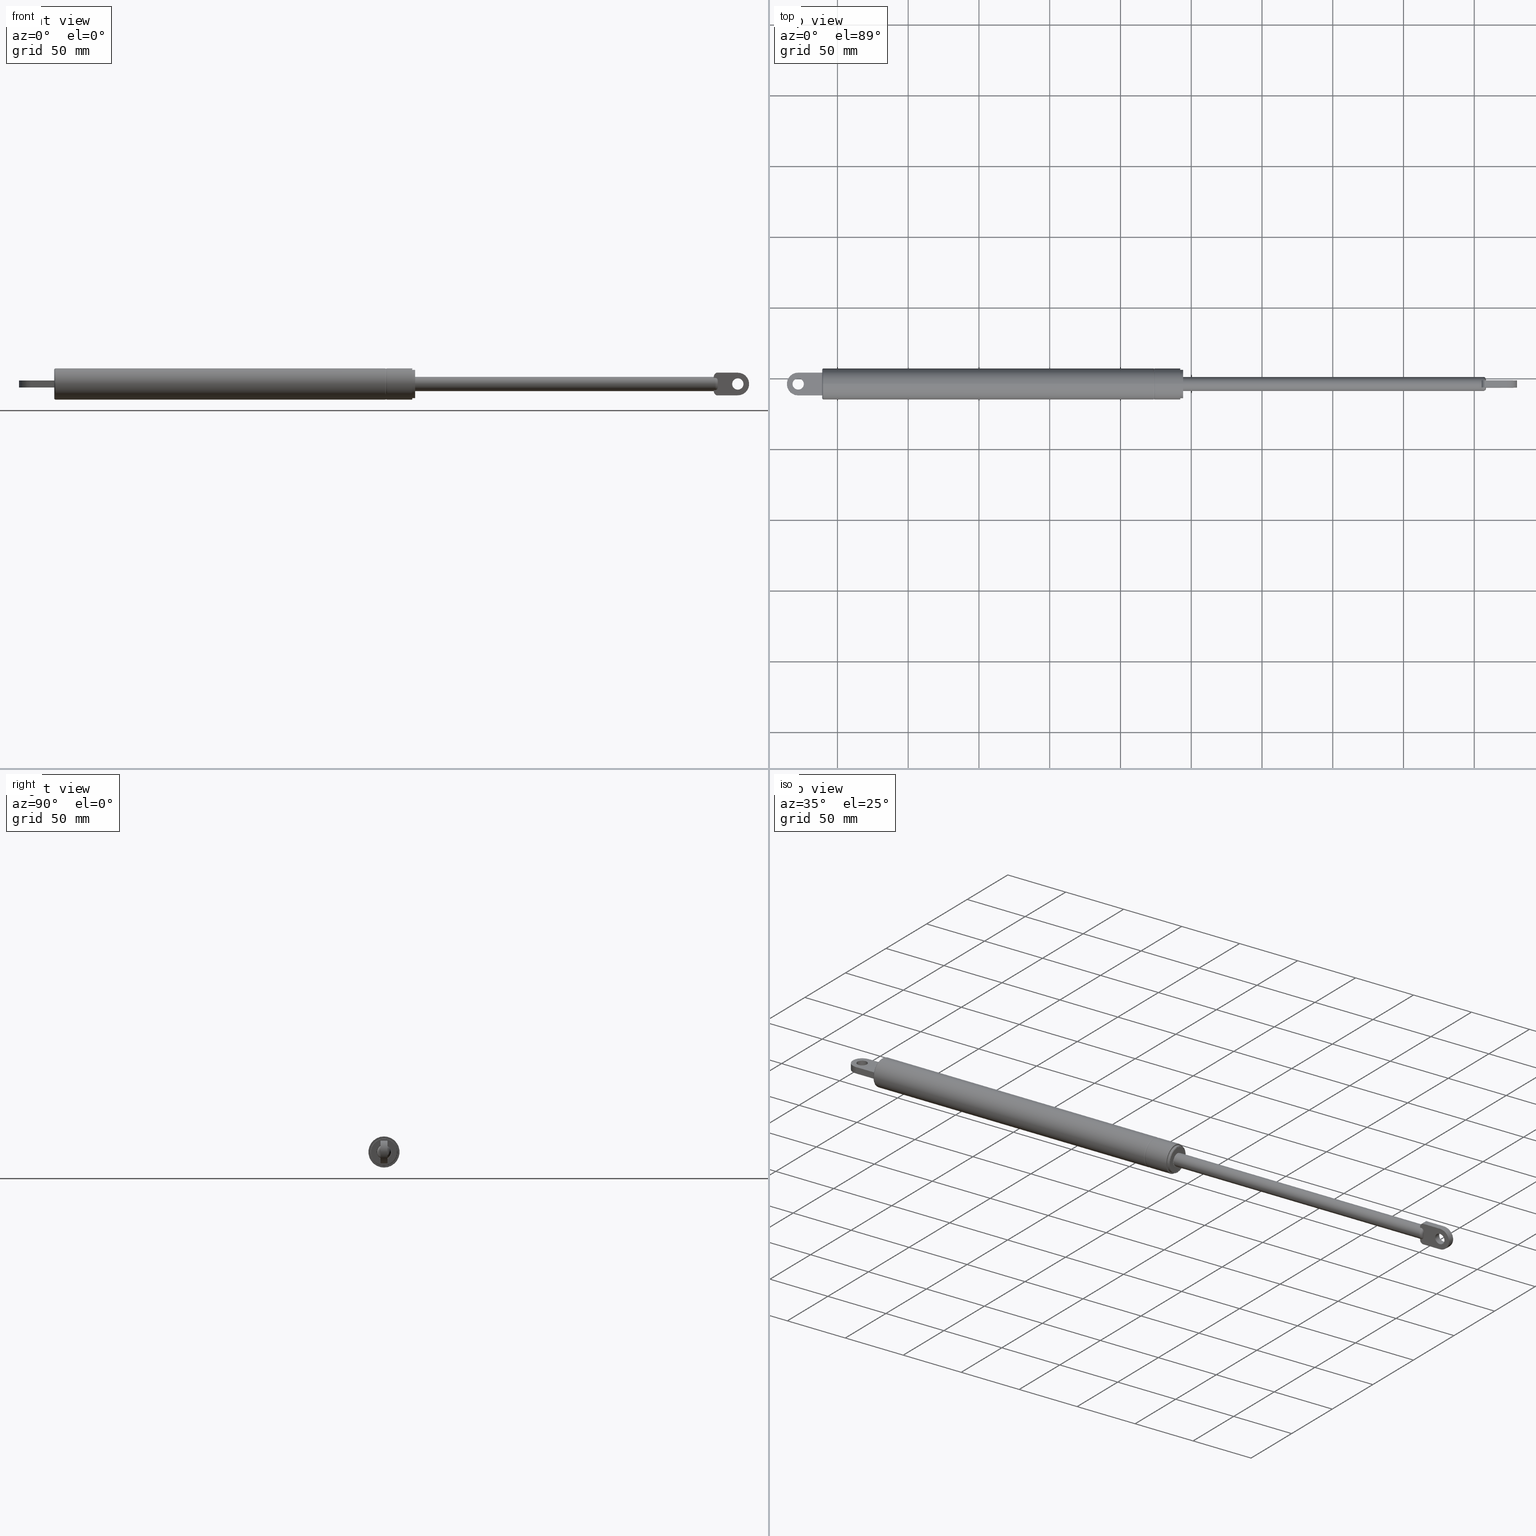
[diagram: canonical four-view strip — front | top / right | iso, engineering-drawing reading convention]
A machine part, canonical four-view strip (front | top / right | iso — engineering-drawing reading convention). The complete STEP part file that produces these views, byte-faithful:
ISO-10303-21;
HEADER;
/* Generated by software containing ST-Developer
 * from STEP Tools, Inc. (www.steptools.com) 
 */

FILE_DESCRIPTION(
/* description */ (''),
/* implementation_level */ '2;1');

FILE_NAME(
/* name */ '\\\\NAS\\db20\\SB-500\\DR_SB-500.stp',
/* time_stamp */ '2021-08-02T14:48:32+09:00',
/* author */ ('user'),
/* organization */ (''),
/* preprocessor_version */ 'ST-DEVELOPER v15.6',
/* originating_system */ 'Autodesk Inventor 2015',
/* authorisation */ '');

FILE_SCHEMA (('AUTOMOTIVE_DESIGN { 1 0 10303 214 3 1 1 }'));
ENDSEC;

DATA;
#10=MECHANICAL_DESIGN_GEOMETRIC_PRESENTATION_REPRESENTATION('',(#42,#41,
#37,#39,#38,#40),#1480);
#11=ITEM_DEFINED_TRANSFORMATION($,$,#816,#926);
#12=ITEM_DEFINED_TRANSFORMATION($,$,#850,#927);
#13=ITEM_DEFINED_TRANSFORMATION($,$,#867,#928);
#14=(
REPRESENTATION_RELATIONSHIP($,$,#1498,#1501)
REPRESENTATION_RELATIONSHIP_WITH_TRANSFORMATION(#11)
SHAPE_REPRESENTATION_RELATIONSHIP()
);
#15=(
REPRESENTATION_RELATIONSHIP($,$,#1499,#1501)
REPRESENTATION_RELATIONSHIP_WITH_TRANSFORMATION(#12)
SHAPE_REPRESENTATION_RELATIONSHIP()
);
#16=(
REPRESENTATION_RELATIONSHIP($,$,#1500,#1501)
REPRESENTATION_RELATIONSHIP_WITH_TRANSFORMATION(#13)
SHAPE_REPRESENTATION_RELATIONSHIP()
);
#17=CONTEXT_DEPENDENT_SHAPE_REPRESENTATION(#14,#1495);
#18=CONTEXT_DEPENDENT_SHAPE_REPRESENTATION(#15,#1496);
#19=CONTEXT_DEPENDENT_SHAPE_REPRESENTATION(#16,#1497);
#20=NEXT_ASSEMBLY_USAGE_OCCURRENCE('DR_SB-500-BASE:1',$,$,#1506,#1503,$);
#21=NEXT_ASSEMBLY_USAGE_OCCURRENCE('DR_SB-500-RING:1',$,$,#1506,#1504,$);
#22=NEXT_ASSEMBLY_USAGE_OCCURRENCE('DR_SB-500-SUPPORT:1',$,$,#1506,#1505,
$);
#23=CONICAL_SURFACE('',#914,0.5,59.);
#24=B_SPLINE_CURVE_WITH_KNOTS('',3,(#1310,#1311,#1312,#1313),
 .UNSPECIFIED.,.F.,.F.,(4,4),(2.24323015542536,2.2531841307143),
 .UNSPECIFIED.);
#25=B_SPLINE_CURVE_WITH_KNOTS('',3,(#1318,#1319,#1320,#1321,#1322,#1323),
 .UNSPECIFIED.,.F.,.F.,(4,2,4),(2.24323015542536,2.2531841307143,2.26313810600325),
 .UNSPECIFIED.);
#26=B_SPLINE_CURVE_WITH_KNOTS('',3,(#1327,#1328,#1329,#1330),
 .UNSPECIFIED.,.F.,.F.,(4,4),(2.2531841307143,2.26313810600325),
 .UNSPECIFIED.);
#27=B_SPLINE_CURVE_WITH_KNOTS('',3,(#1381,#1382,#1383,#1384,#1385,#1386,
#1387,#1388,#1389,#1390),.UNSPECIFIED.,.F.,.F.,(4,2,2,2,4),(0.507747460868833,
0.576100875673751,0.64949632416387,0.734554407496018,0.859856681078406),
 .UNSPECIFIED.);
#28=B_SPLINE_CURVE_WITH_KNOTS('',3,(#1394,#1395,#1396,#1397,#1398,#1399,
#1400,#1401,#1402,#1403),.UNSPECIFIED.,.F.,.F.,(4,2,2,2,4),(1.17113316239693,
1.29643543597931,1.38149351931146,1.45488896780158,1.5232423826065),
 .UNSPECIFIED.);
#29=B_SPLINE_CURVE_WITH_KNOTS('',3,(#1425,#1426,#1427,#1428,#1429,#1430,
#1431,#1432,#1433,#1434),.UNSPECIFIED.,.F.,.F.,(4,2,2,2,4),(0.507747460868833,
0.576100875673751,0.64949632416387,0.734554407496018,0.859856681078406),
 .UNSPECIFIED.);
#30=B_SPLINE_CURVE_WITH_KNOTS('',3,(#1436,#1437,#1438,#1439,#1440,#1441,
#1442,#1443,#1444,#1445),.UNSPECIFIED.,.F.,.F.,(4,2,2,2,4),(1.17113316239693,
1.29643543597931,1.38149351931146,1.45488896780158,1.5232423826065),
 .UNSPECIFIED.);
#31=SHAPE_REPRESENTATION_RELATIONSHIP('SRR','None',#1498,#34);
#32=SHAPE_REPRESENTATION_RELATIONSHIP('SRR','None',#1499,#35);
#33=SHAPE_REPRESENTATION_RELATIONSHIP('SRR','None',#1500,#36);
#34=ADVANCED_BREP_SHAPE_REPRESENTATION($,(#43),#1476);
#35=ADVANCED_BREP_SHAPE_REPRESENTATION($,(#44),#1477);
#36=ADVANCED_BREP_SHAPE_REPRESENTATION($,(#45),#1478);
#37=STYLED_ITEM('',(#1523),#43);
#38=STYLED_ITEM('',(#1524),#44);
#39=STYLED_ITEM('',(#1523),#788);
#40=STYLED_ITEM('',(#1525),#794);
#41=STYLED_ITEM('',(#1526),#812);
#42=STYLED_ITEM('',(#1523),#45);
#43=MANIFOLD_SOLID_BREP('\X2\C194B9ACB4DC\X0\1',#813);
#44=MANIFOLD_SOLID_BREP('\X2\C194B9ACB4DC\X0\1',#814);
#45=MANIFOLD_SOLID_BREP('\X2\C194B9ACB4DC\X0\1',#815);
#46=LINE('',#1217,#84);
#47=LINE('',#1219,#85);
#48=LINE('',#1221,#86);
#49=LINE('',#1222,#87);
#50=LINE('',#1232,#88);
#51=LINE('',#1233,#89);
#52=LINE('',#1236,#90);
#53=LINE('',#1239,#91);
#54=LINE('',#1241,#92);
#55=LINE('',#1243,#93);
#56=LINE('',#1287,#94);
#57=LINE('',#1291,#95);
#58=LINE('',#1296,#96);
#59=LINE('',#1300,#97);
#60=LINE('',#1333,#98);
#61=LINE('',#1337,#99);
#62=LINE('',#1340,#100);
#63=LINE('',#1342,#101);
#64=LINE('',#1345,#102);
#65=LINE('',#1346,#103);
#66=LINE('',#1349,#104);
#67=LINE('',#1353,#105);
#68=LINE('',#1357,#106);
#69=LINE('',#1360,#107);
#70=LINE('',#1368,#108);
#71=LINE('',#1372,#109);
#72=LINE('',#1374,#110);
#73=LINE('',#1375,#111);
#74=LINE('',#1377,#112);
#75=LINE('',#1379,#113);
#76=LINE('',#1392,#114);
#77=LINE('',#1404,#115);
#78=LINE('',#1405,#116);
#79=LINE('',#1409,#117);
#80=LINE('',#1416,#118);
#81=LINE('',#1448,#119);
#82=LINE('',#1461,#120);
#83=LINE('',#1462,#121);
#84=VECTOR('',#959,5.);
#85=VECTOR('',#960,16.);
#86=VECTOR('',#961,5.);
#87=VECTOR('',#962,16.);
#88=VECTOR('',#973,17.);
#89=VECTOR('',#974,17.);
#90=VECTOR('',#977,5.);
#91=VECTOR('',#980,5.);
#92=VECTOR('',#983,17.);
#93=VECTOR('',#986,17.);
#94=VECTOR('',#1045,0.00115466205862391);
#95=VECTOR('',#1048,0.00115466205862391);
#96=VECTOR('',#1053,0.00115466205862391);
#97=VECTOR('',#1056,0.00115466205862391);
#98=VECTOR('',#1077,2.39999500012506);
#99=VECTOR('',#1080,5.);
#100=VECTOR('',#1083,2.39999500012506);
#101=VECTOR('',#1086,0.668718319019183);
#102=VECTOR('',#1089,2.39999500012506);
#103=VECTOR('',#1090,0.668718319019183);
#104=VECTOR('',#1093,2.39999500012506);
#105=VECTOR('',#1096,5.);
#106=VECTOR('',#1101,0.999999999999996);
#107=VECTOR('',#1104,0.999999999999996);
#108=VECTOR('',#1113,5.);
#109=VECTOR('',#1118,14.7807764064044);
#110=VECTOR('',#1119,5.);
#111=VECTOR('',#1120,14.7807764064044);
#112=VECTOR('',#1123,0.668718319019183);
#113=VECTOR('',#1124,0.999999999999996);
#114=VECTOR('',#1125,3.3166247903554);
#115=VECTOR('',#1126,0.999999999999996);
#116=VECTOR('',#1127,0.668718319019183);
#117=VECTOR('',#1130,14.7807764064044);
#118=VECTOR('',#1139,5.);
#119=VECTOR('',#1158,3.3166247903554);
#120=VECTOR('',#1175,14.7807764064044);
#121=VECTOR('',#1176,5.);
#122=PLANE('',#830);
#123=PLANE('',#834);
#124=PLANE('',#838);
#125=PLANE('',#839);
#126=PLANE('',#840);
#127=PLANE('',#844);
#128=PLANE('',#845);
#129=PLANE('',#849);
#130=PLANE('',#854);
#131=PLANE('',#864);
#132=PLANE('',#868);
#133=PLANE('',#871);
#134=PLANE('',#874);
#135=PLANE('',#885);
#136=PLANE('',#886);
#137=PLANE('',#897);
#138=PLANE('',#898);
#139=PLANE('',#904);
#140=PLANE('',#905);
#141=PLANE('',#912);
#142=PLANE('',#913);
#143=PLANE('',#920);
#144=PLANE('',#923);
#145=PLANE('',#924);
#146=CYLINDRICAL_SURFACE('',#820,11.);
#147=CYLINDRICAL_SURFACE('',#825,11.);
#148=CYLINDRICAL_SURFACE('',#831,4.);
#149=CYLINDRICAL_SURFACE('',#836,8.);
#150=CYLINDRICAL_SURFACE('',#841,9.5);
#151=CYLINDRICAL_SURFACE('',#847,10.);
#152=CYLINDRICAL_SURFACE('',#856,5.);
#153=CYLINDRICAL_SURFACE('',#860,9.5);
#154=CYLINDRICAL_SURFACE('',#877,5.001);
#155=CYLINDRICAL_SURFACE('',#882,3.25);
#156=CYLINDRICAL_SURFACE('',#887,3.25);
#157=CYLINDRICAL_SURFACE('',#890,5.);
#158=CYLINDRICAL_SURFACE('',#892,5.);
#159=CYLINDRICAL_SURFACE('',#894,1.);
#160=CYLINDRICAL_SURFACE('',#902,1.);
#161=CYLINDRICAL_SURFACE('',#909,5.);
#162=CYLINDRICAL_SURFACE('',#916,1.);
#163=CYLINDRICAL_SURFACE('',#918,4.);
#164=CYLINDRICAL_SURFACE('',#921,8.);
#165=FACE_BOUND('',#250,.T.);
#166=FACE_BOUND('',#252,.T.);
#167=FACE_BOUND('',#254,.T.);
#168=FACE_BOUND('',#256,.T.);
#169=FACE_BOUND('',#258,.T.);
#170=FACE_BOUND('',#260,.T.);
#171=FACE_BOUND('',#262,.T.);
#172=FACE_BOUND('',#264,.T.);
#173=FACE_BOUND('',#266,.T.);
#174=FACE_BOUND('',#271,.T.);
#175=FACE_BOUND('',#273,.T.);
#176=FACE_BOUND('',#276,.T.);
#177=FACE_BOUND('',#278,.T.);
#178=FACE_BOUND('',#280,.T.);
#179=FACE_BOUND('',#282,.T.);
#180=FACE_BOUND('',#284,.T.);
#181=FACE_BOUND('',#286,.T.);
#182=FACE_BOUND('',#288,.T.);
#183=FACE_BOUND('',#290,.T.);
#184=FACE_BOUND('',#292,.T.);
#185=FACE_BOUND('',#294,.T.);
#186=FACE_BOUND('',#296,.T.);
#187=FACE_BOUND('',#300,.T.);
#188=FACE_BOUND('',#302,.T.);
#189=FACE_BOUND('',#309,.T.);
#190=FACE_BOUND('',#313,.T.);
#191=FACE_BOUND('',#324,.T.);
#192=FACE_BOUND('',#326,.T.);
#193=FACE_BOUND('',#330,.T.);
#194=FACE_BOUND('',#332,.T.);
#195=FACE_OUTER_BOUND('',#249,.T.);
#196=FACE_OUTER_BOUND('',#251,.T.);
#197=FACE_OUTER_BOUND('',#253,.T.);
#198=FACE_OUTER_BOUND('',#255,.T.);
#199=FACE_OUTER_BOUND('',#257,.T.);
#200=FACE_OUTER_BOUND('',#259,.T.);
#201=FACE_OUTER_BOUND('',#261,.T.);
#202=FACE_OUTER_BOUND('',#263,.T.);
#203=FACE_OUTER_BOUND('',#265,.T.);
#204=FACE_OUTER_BOUND('',#267,.T.);
#205=FACE_OUTER_BOUND('',#268,.T.);
#206=FACE_OUTER_BOUND('',#269,.T.);
#207=FACE_OUTER_BOUND('',#270,.T.);
#208=FACE_OUTER_BOUND('',#272,.T.);
#209=FACE_OUTER_BOUND('',#274,.T.);
#210=FACE_OUTER_BOUND('',#275,.T.);
#211=FACE_OUTER_BOUND('',#277,.T.);
#212=FACE_OUTER_BOUND('',#279,.T.);
#213=FACE_OUTER_BOUND('',#281,.T.);
#214=FACE_OUTER_BOUND('',#283,.T.);
#215=FACE_OUTER_BOUND('',#285,.T.);
#216=FACE_OUTER_BOUND('',#287,.T.);
#217=FACE_OUTER_BOUND('',#289,.T.);
#218=FACE_OUTER_BOUND('',#291,.T.);
#219=FACE_OUTER_BOUND('',#293,.T.);
#220=FACE_OUTER_BOUND('',#295,.T.);
#221=FACE_OUTER_BOUND('',#297,.T.);
#222=FACE_OUTER_BOUND('',#298,.T.);
#223=FACE_OUTER_BOUND('',#299,.T.);
#224=FACE_OUTER_BOUND('',#301,.T.);
#225=FACE_OUTER_BOUND('',#303,.T.);
#226=FACE_OUTER_BOUND('',#304,.T.);
#227=FACE_OUTER_BOUND('',#305,.T.);
#228=FACE_OUTER_BOUND('',#306,.T.);
#229=FACE_OUTER_BOUND('',#307,.T.);
#230=FACE_OUTER_BOUND('',#308,.T.);
#231=FACE_OUTER_BOUND('',#310,.T.);
#232=FACE_OUTER_BOUND('',#311,.T.);
#233=FACE_OUTER_BOUND('',#312,.T.);
#234=FACE_OUTER_BOUND('',#314,.T.);
#235=FACE_OUTER_BOUND('',#315,.T.);
#236=FACE_OUTER_BOUND('',#316,.T.);
#237=FACE_OUTER_BOUND('',#317,.T.);
#238=FACE_OUTER_BOUND('',#318,.T.);
#239=FACE_OUTER_BOUND('',#319,.T.);
#240=FACE_OUTER_BOUND('',#320,.T.);
#241=FACE_OUTER_BOUND('',#321,.T.);
#242=FACE_OUTER_BOUND('',#322,.T.);
#243=FACE_OUTER_BOUND('',#323,.T.);
#244=FACE_OUTER_BOUND('',#325,.T.);
#245=FACE_OUTER_BOUND('',#327,.T.);
#246=FACE_OUTER_BOUND('',#328,.T.);
#247=FACE_OUTER_BOUND('',#329,.T.);
#248=FACE_OUTER_BOUND('',#331,.T.);
#249=EDGE_LOOP('',(#555));
#250=EDGE_LOOP('',(#556));
#251=EDGE_LOOP('',(#557));
#252=EDGE_LOOP('',(#558));
#253=EDGE_LOOP('',(#559));
#254=EDGE_LOOP('',(#560));
#255=EDGE_LOOP('',(#561));
#256=EDGE_LOOP('',(#562));
#257=EDGE_LOOP('',(#563));
#258=EDGE_LOOP('',(#564));
#259=EDGE_LOOP('',(#565));
#260=EDGE_LOOP('',(#566));
#261=EDGE_LOOP('',(#567));
#262=EDGE_LOOP('',(#568,#569,#570,#571));
#263=EDGE_LOOP('',(#572));
#264=EDGE_LOOP('',(#573));
#265=EDGE_LOOP('',(#574,#575,#576,#577));
#266=EDGE_LOOP('',(#578));
#267=EDGE_LOOP('',(#579,#580,#581,#582));
#268=EDGE_LOOP('',(#583,#584,#585,#586));
#269=EDGE_LOOP('',(#587,#588,#589,#590));
#270=EDGE_LOOP('',(#591,#592,#593,#594));
#271=EDGE_LOOP('',(#595));
#272=EDGE_LOOP('',(#596));
#273=EDGE_LOOP('',(#597));
#274=EDGE_LOOP('',(#598));
#275=EDGE_LOOP('',(#599));
#276=EDGE_LOOP('',(#600));
#277=EDGE_LOOP('',(#601));
#278=EDGE_LOOP('',(#602));
#279=EDGE_LOOP('',(#603));
#280=EDGE_LOOP('',(#604));
#281=EDGE_LOOP('',(#605));
#282=EDGE_LOOP('',(#606));
#283=EDGE_LOOP('',(#607));
#284=EDGE_LOOP('',(#608));
#285=EDGE_LOOP('',(#609));
#286=EDGE_LOOP('',(#610));
#287=EDGE_LOOP('',(#611));
#288=EDGE_LOOP('',(#612));
#289=EDGE_LOOP('',(#613));
#290=EDGE_LOOP('',(#614));
#291=EDGE_LOOP('',(#615));
#292=EDGE_LOOP('',(#616));
#293=EDGE_LOOP('',(#617));
#294=EDGE_LOOP('',(#618));
#295=EDGE_LOOP('',(#619));
#296=EDGE_LOOP('',(#620));
#297=EDGE_LOOP('',(#621,#622,#623,#624));
#298=EDGE_LOOP('',(#625,#626,#627,#628));
#299=EDGE_LOOP('',(#629));
#300=EDGE_LOOP('',(#630));
#301=EDGE_LOOP('',(#631,#632,#633,#634,#635,#636,#637,#638,#639));
#302=EDGE_LOOP('',(#640));
#303=EDGE_LOOP('',(#641,#642,#643,#644,#645,#646,#647));
#304=EDGE_LOOP('',(#648,#649,#650));
#305=EDGE_LOOP('',(#651,#652,#653));
#306=EDGE_LOOP('',(#654,#655,#656,#657,#658,#659));
#307=EDGE_LOOP('',(#660,#661,#662,#663));
#308=EDGE_LOOP('',(#664));
#309=EDGE_LOOP('',(#665));
#310=EDGE_LOOP('',(#666,#667,#668,#669));
#311=EDGE_LOOP('',(#670,#671,#672,#673));
#312=EDGE_LOOP('',(#674,#675,#676,#677,#678,#679,#680,#681,#682,#683,#684,
#685,#686,#687,#688,#689));
#313=EDGE_LOOP('',(#690));
#314=EDGE_LOOP('',(#691,#692,#693,#694));
#315=EDGE_LOOP('',(#695,#696,#697));
#316=EDGE_LOOP('',(#698,#699,#700));
#317=EDGE_LOOP('',(#701,#702,#703,#704));
#318=EDGE_LOOP('',(#705,#706,#707,#708));
#319=EDGE_LOOP('',(#709,#710,#711,#712));
#320=EDGE_LOOP('',(#713,#714));
#321=EDGE_LOOP('',(#715,#716));
#322=EDGE_LOOP('',(#717));
#323=EDGE_LOOP('',(#718));
#324=EDGE_LOOP('',(#719));
#325=EDGE_LOOP('',(#720));
#326=EDGE_LOOP('',(#721));
#327=EDGE_LOOP('',(#722,#723,#724,#725));
#328=EDGE_LOOP('',(#726,#727,#728,#729));
#329=EDGE_LOOP('',(#730,#731,#732,#733,#734,#735,#736,#737,#738,#739,#740,
#741,#742,#743,#744,#745));
#330=EDGE_LOOP('',(#746));
#331=EDGE_LOOP('',(#747));
#332=EDGE_LOOP('',(#748));
#333=CIRCLE('',#818,11.);
#334=CIRCLE('',#819,10.9330127018922);
#335=CIRCLE('',#821,11.);
#336=CIRCLE('',#823,10.9330127018922);
#337=CIRCLE('',#824,11.);
#338=CIRCLE('',#826,11.);
#339=CIRCLE('',#829,9.99999999999997);
#340=CIRCLE('',#832,4.);
#341=CIRCLE('',#833,4.);
#342=CIRCLE('',#835,8.);
#343=CIRCLE('',#837,8.);
#344=CIRCLE('',#842,9.5);
#345=CIRCLE('',#843,9.5);
#346=CIRCLE('',#846,10.);
#347=CIRCLE('',#848,10.);
#348=CIRCLE('',#852,5.);
#349=CIRCLE('',#853,5.3);
#350=CIRCLE('',#855,9.2);
#351=CIRCLE('',#857,5.);
#352=CIRCLE('',#859,9.5);
#353=CIRCLE('',#861,9.5);
#354=CIRCLE('',#863,9.2);
#355=CIRCLE('',#865,5.3);
#356=CIRCLE('',#869,5.001);
#357=CIRCLE('',#870,5.);
#358=CIRCLE('',#872,5.);
#359=CIRCLE('',#873,5.001);
#360=CIRCLE('',#875,5.001);
#361=CIRCLE('',#876,5.);
#362=CIRCLE('',#878,5.001);
#363=CIRCLE('',#879,5.001);
#364=CIRCLE('',#880,5.001);
#365=CIRCLE('',#881,5.001);
#366=CIRCLE('',#883,3.25);
#367=CIRCLE('',#884,3.25);
#368=CIRCLE('',#888,3.25);
#369=CIRCLE('',#889,3.25);
#370=CIRCLE('',#891,5.);
#371=CIRCLE('',#893,5.);
#372=CIRCLE('',#895,1.);
#373=CIRCLE('',#896,1.);
#374=CIRCLE('',#899,1.);
#375=CIRCLE('',#900,8.);
#376=CIRCLE('',#901,4.);
#377=CIRCLE('',#903,1.);
#378=CIRCLE('',#907,5.);
#379=CIRCLE('',#908,3.);
#380=CIRCLE('',#911,3.);
#381=CIRCLE('',#915,1.);
#382=CIRCLE('',#917,1.);
#383=CIRCLE('',#919,4.);
#384=CIRCLE('',#922,8.);
#385=VERTEX_POINT('',#1195);
#386=VERTEX_POINT('',#1197);
#387=VERTEX_POINT('',#1200);
#388=VERTEX_POINT('',#1203);
#389=VERTEX_POINT('',#1205);
#390=VERTEX_POINT('',#1208);
#391=VERTEX_POINT('',#1212);
#392=VERTEX_POINT('',#1215);
#393=VERTEX_POINT('',#1216);
#394=VERTEX_POINT('',#1218);
#395=VERTEX_POINT('',#1220);
#396=VERTEX_POINT('',#1224);
#397=VERTEX_POINT('',#1226);
#398=VERTEX_POINT('',#1229);
#399=VERTEX_POINT('',#1230);
#400=VERTEX_POINT('',#1235);
#401=VERTEX_POINT('',#1237);
#402=VERTEX_POINT('',#1246);
#403=VERTEX_POINT('',#1248);
#404=VERTEX_POINT('',#1252);
#405=VERTEX_POINT('',#1255);
#406=VERTEX_POINT('',#1260);
#407=VERTEX_POINT('',#1262);
#408=VERTEX_POINT('',#1265);
#409=VERTEX_POINT('',#1268);
#410=VERTEX_POINT('',#1271);
#411=VERTEX_POINT('',#1274);
#412=VERTEX_POINT('',#1277);
#413=VERTEX_POINT('',#1280);
#414=VERTEX_POINT('',#1285);
#415=VERTEX_POINT('',#1286);
#416=VERTEX_POINT('',#1288);
#417=VERTEX_POINT('',#1290);
#418=VERTEX_POINT('',#1294);
#419=VERTEX_POINT('',#1295);
#420=VERTEX_POINT('',#1297);
#421=VERTEX_POINT('',#1299);
#422=VERTEX_POINT('',#1303);
#423=VERTEX_POINT('',#1305);
#424=VERTEX_POINT('',#1308);
#425=VERTEX_POINT('',#1309);
#426=VERTEX_POINT('',#1315);
#427=VERTEX_POINT('',#1317);
#428=VERTEX_POINT('',#1325);
#429=VERTEX_POINT('',#1332);
#430=VERTEX_POINT('',#1334);
#431=VERTEX_POINT('',#1336);
#432=VERTEX_POINT('',#1338);
#433=VERTEX_POINT('',#1344);
#434=VERTEX_POINT('',#1348);
#435=VERTEX_POINT('',#1350);
#436=VERTEX_POINT('',#1352);
#437=VERTEX_POINT('',#1356);
#438=VERTEX_POINT('',#1358);
#439=VERTEX_POINT('',#1362);
#440=VERTEX_POINT('',#1365);
#441=VERTEX_POINT('',#1367);
#442=VERTEX_POINT('',#1371);
#443=VERTEX_POINT('',#1373);
#444=VERTEX_POINT('',#1378);
#445=VERTEX_POINT('',#1380);
#446=VERTEX_POINT('',#1391);
#447=VERTEX_POINT('',#1393);
#448=VERTEX_POINT('',#1406);
#449=VERTEX_POINT('',#1408);
#450=VERTEX_POINT('',#1411);
#451=VERTEX_POINT('',#1414);
#452=VERTEX_POINT('',#1424);
#453=VERTEX_POINT('',#1435);
#454=VERTEX_POINT('',#1451);
#455=VERTEX_POINT('',#1454);
#456=VERTEX_POINT('',#1457);
#457=VERTEX_POINT('',#1460);
#458=EDGE_CURVE('',#385,#385,#333,.T.);
#459=EDGE_CURVE('',#386,#386,#334,.T.);
#460=EDGE_CURVE('',#387,#387,#335,.T.);
#461=EDGE_CURVE('',#388,#388,#336,.T.);
#462=EDGE_CURVE('',#389,#389,#337,.T.);
#463=EDGE_CURVE('',#390,#390,#338,.T.);
#464=EDGE_CURVE('',#391,#391,#339,.T.);
#465=EDGE_CURVE('',#392,#393,#46,.T.);
#466=EDGE_CURVE('',#393,#394,#47,.T.);
#467=EDGE_CURVE('',#394,#395,#48,.T.);
#468=EDGE_CURVE('',#395,#392,#49,.T.);
#469=EDGE_CURVE('',#396,#396,#340,.T.);
#470=EDGE_CURVE('',#397,#397,#341,.T.);
#471=EDGE_CURVE('',#398,#399,#342,.T.);
#472=EDGE_CURVE('',#392,#398,#50,.T.);
#473=EDGE_CURVE('',#399,#395,#51,.T.);
#474=EDGE_CURVE('',#399,#400,#52,.T.);
#475=EDGE_CURVE('',#400,#401,#343,.T.);
#476=EDGE_CURVE('',#401,#398,#53,.T.);
#477=EDGE_CURVE('',#394,#400,#54,.T.);
#478=EDGE_CURVE('',#401,#393,#55,.T.);
#479=EDGE_CURVE('',#402,#402,#344,.T.);
#480=EDGE_CURVE('',#403,#403,#345,.T.);
#481=EDGE_CURVE('',#404,#404,#346,.T.);
#482=EDGE_CURVE('',#405,#405,#347,.T.);
#483=EDGE_CURVE('',#406,#406,#348,.T.);
#484=EDGE_CURVE('',#407,#407,#349,.T.);
#485=EDGE_CURVE('',#408,#408,#350,.T.);
#486=EDGE_CURVE('',#409,#409,#351,.T.);
#487=EDGE_CURVE('',#410,#410,#352,.T.);
#488=EDGE_CURVE('',#411,#411,#353,.T.);
#489=EDGE_CURVE('',#412,#412,#354,.T.);
#490=EDGE_CURVE('',#413,#413,#355,.T.);
#491=EDGE_CURVE('',#414,#415,#56,.T.);
#492=EDGE_CURVE('',#416,#414,#356,.T.);
#493=EDGE_CURVE('',#417,#416,#57,.T.);
#494=EDGE_CURVE('',#415,#417,#357,.T.);
#495=EDGE_CURVE('',#418,#419,#58,.T.);
#496=EDGE_CURVE('',#420,#418,#358,.T.);
#497=EDGE_CURVE('',#421,#420,#59,.T.);
#498=EDGE_CURVE('',#419,#421,#359,.T.);
#499=EDGE_CURVE('',#422,#422,#360,.T.);
#500=EDGE_CURVE('',#423,#423,#361,.T.);
#501=EDGE_CURVE('',#424,#425,#24,.T.);
#502=EDGE_CURVE('',#419,#424,#362,.T.);
#503=EDGE_CURVE('',#426,#421,#363,.T.);
#504=EDGE_CURVE('',#427,#426,#25,.T.);
#505=EDGE_CURVE('',#416,#427,#364,.T.);
#506=EDGE_CURVE('',#428,#414,#365,.T.);
#507=EDGE_CURVE('',#425,#428,#26,.T.);
#508=EDGE_CURVE('',#428,#429,#60,.T.);
#509=EDGE_CURVE('',#430,#429,#366,.T.);
#510=EDGE_CURVE('',#431,#430,#61,.T.);
#511=EDGE_CURVE('',#432,#431,#367,.T.);
#512=EDGE_CURVE('',#432,#424,#62,.T.);
#513=EDGE_CURVE('',#429,#414,#63,.T.);
#514=EDGE_CURVE('',#433,#427,#64,.T.);
#515=EDGE_CURVE('',#416,#433,#65,.T.);
#516=EDGE_CURVE('',#426,#434,#66,.T.);
#517=EDGE_CURVE('',#435,#434,#368,.T.);
#518=EDGE_CURVE('',#436,#435,#67,.T.);
#519=EDGE_CURVE('',#433,#436,#369,.T.);
#520=EDGE_CURVE('',#437,#417,#68,.T.);
#521=EDGE_CURVE('',#438,#437,#370,.T.);
#522=EDGE_CURVE('',#415,#438,#69,.T.);
#523=EDGE_CURVE('',#439,#439,#371,.T.);
#524=EDGE_CURVE('',#435,#440,#372,.T.);
#525=EDGE_CURVE('',#440,#441,#70,.T.);
#526=EDGE_CURVE('',#441,#436,#373,.T.);
#527=EDGE_CURVE('',#440,#442,#71,.T.);
#528=EDGE_CURVE('',#443,#442,#72,.T.);
#529=EDGE_CURVE('',#443,#441,#73,.T.);
#530=EDGE_CURVE('',#434,#421,#74,.T.);
#531=EDGE_CURVE('',#420,#444,#75,.T.);
#532=EDGE_CURVE('',#445,#444,#27,.F.);
#533=EDGE_CURVE('',#445,#446,#76,.T.);
#534=EDGE_CURVE('',#447,#446,#28,.F.);
#535=EDGE_CURVE('',#447,#418,#77,.T.);
#536=EDGE_CURVE('',#419,#432,#78,.T.);
#537=EDGE_CURVE('',#448,#431,#374,.T.);
#538=EDGE_CURVE('',#449,#448,#79,.T.);
#539=EDGE_CURVE('',#442,#449,#375,.T.);
#540=EDGE_CURVE('',#450,#450,#376,.T.);
#541=EDGE_CURVE('',#430,#451,#377,.T.);
#542=EDGE_CURVE('',#451,#448,#80,.T.);
#543=EDGE_CURVE('',#444,#447,#378,.T.);
#544=EDGE_CURVE('',#446,#445,#379,.T.);
#545=EDGE_CURVE('',#452,#438,#29,.F.);
#546=EDGE_CURVE('',#437,#453,#30,.F.);
#547=EDGE_CURVE('',#453,#452,#380,.T.);
#548=EDGE_CURVE('',#452,#453,#81,.T.);
#549=EDGE_CURVE('',#454,#454,#381,.T.);
#550=EDGE_CURVE('',#455,#455,#382,.T.);
#551=EDGE_CURVE('',#456,#456,#383,.T.);
#552=EDGE_CURVE('',#451,#457,#82,.T.);
#553=EDGE_CURVE('',#449,#457,#83,.T.);
#554=EDGE_CURVE('',#457,#443,#384,.T.);
#555=ORIENTED_EDGE('',*,*,#458,.T.);
#556=ORIENTED_EDGE('',*,*,#459,.T.);
#557=ORIENTED_EDGE('',*,*,#460,.T.);
#558=ORIENTED_EDGE('',*,*,#458,.F.);
#559=ORIENTED_EDGE('',*,*,#461,.T.);
#560=ORIENTED_EDGE('',*,*,#462,.T.);
#561=ORIENTED_EDGE('',*,*,#463,.F.);
#562=ORIENTED_EDGE('',*,*,#462,.F.);
#563=ORIENTED_EDGE('',*,*,#461,.F.);
#564=ORIENTED_EDGE('',*,*,#459,.F.);
#565=ORIENTED_EDGE('',*,*,#463,.T.);
#566=ORIENTED_EDGE('',*,*,#464,.T.);
#567=ORIENTED_EDGE('',*,*,#464,.F.);
#568=ORIENTED_EDGE('',*,*,#465,.T.);
#569=ORIENTED_EDGE('',*,*,#466,.T.);
#570=ORIENTED_EDGE('',*,*,#467,.T.);
#571=ORIENTED_EDGE('',*,*,#468,.T.);
#572=ORIENTED_EDGE('',*,*,#469,.F.);
#573=ORIENTED_EDGE('',*,*,#470,.F.);
#574=ORIENTED_EDGE('',*,*,#471,.F.);
#575=ORIENTED_EDGE('',*,*,#472,.F.);
#576=ORIENTED_EDGE('',*,*,#468,.F.);
#577=ORIENTED_EDGE('',*,*,#473,.F.);
#578=ORIENTED_EDGE('',*,*,#469,.T.);
#579=ORIENTED_EDGE('',*,*,#471,.T.);
#580=ORIENTED_EDGE('',*,*,#474,.T.);
#581=ORIENTED_EDGE('',*,*,#475,.T.);
#582=ORIENTED_EDGE('',*,*,#476,.T.);
#583=ORIENTED_EDGE('',*,*,#474,.F.);
#584=ORIENTED_EDGE('',*,*,#473,.T.);
#585=ORIENTED_EDGE('',*,*,#467,.F.);
#586=ORIENTED_EDGE('',*,*,#477,.T.);
#587=ORIENTED_EDGE('',*,*,#476,.F.);
#588=ORIENTED_EDGE('',*,*,#478,.T.);
#589=ORIENTED_EDGE('',*,*,#465,.F.);
#590=ORIENTED_EDGE('',*,*,#472,.T.);
#591=ORIENTED_EDGE('',*,*,#475,.F.);
#592=ORIENTED_EDGE('',*,*,#477,.F.);
#593=ORIENTED_EDGE('',*,*,#466,.F.);
#594=ORIENTED_EDGE('',*,*,#478,.F.);
#595=ORIENTED_EDGE('',*,*,#470,.T.);
#596=ORIENTED_EDGE('',*,*,#479,.F.);
#597=ORIENTED_EDGE('',*,*,#480,.F.);
#598=ORIENTED_EDGE('',*,*,#480,.T.);
#599=ORIENTED_EDGE('',*,*,#481,.F.);
#600=ORIENTED_EDGE('',*,*,#479,.T.);
#601=ORIENTED_EDGE('',*,*,#482,.F.);
#602=ORIENTED_EDGE('',*,*,#481,.T.);
#603=ORIENTED_EDGE('',*,*,#460,.F.);
#604=ORIENTED_EDGE('',*,*,#482,.T.);
#605=ORIENTED_EDGE('',*,*,#483,.T.);
#606=ORIENTED_EDGE('',*,*,#484,.T.);
#607=ORIENTED_EDGE('',*,*,#485,.F.);
#608=ORIENTED_EDGE('',*,*,#484,.F.);
#609=ORIENTED_EDGE('',*,*,#486,.F.);
#610=ORIENTED_EDGE('',*,*,#483,.F.);
#611=ORIENTED_EDGE('',*,*,#485,.T.);
#612=ORIENTED_EDGE('',*,*,#487,.T.);
#613=ORIENTED_EDGE('',*,*,#488,.F.);
#614=ORIENTED_EDGE('',*,*,#487,.F.);
#615=ORIENTED_EDGE('',*,*,#488,.T.);
#616=ORIENTED_EDGE('',*,*,#489,.T.);
#617=ORIENTED_EDGE('',*,*,#489,.F.);
#618=ORIENTED_EDGE('',*,*,#490,.F.);
#619=ORIENTED_EDGE('',*,*,#486,.T.);
#620=ORIENTED_EDGE('',*,*,#490,.T.);
#621=ORIENTED_EDGE('',*,*,#491,.F.);
#622=ORIENTED_EDGE('',*,*,#492,.F.);
#623=ORIENTED_EDGE('',*,*,#493,.F.);
#624=ORIENTED_EDGE('',*,*,#494,.F.);
#625=ORIENTED_EDGE('',*,*,#495,.F.);
#626=ORIENTED_EDGE('',*,*,#496,.F.);
#627=ORIENTED_EDGE('',*,*,#497,.F.);
#628=ORIENTED_EDGE('',*,*,#498,.F.);
#629=ORIENTED_EDGE('',*,*,#499,.T.);
#630=ORIENTED_EDGE('',*,*,#500,.F.);
#631=ORIENTED_EDGE('',*,*,#501,.F.);
#632=ORIENTED_EDGE('',*,*,#502,.F.);
#633=ORIENTED_EDGE('',*,*,#498,.T.);
#634=ORIENTED_EDGE('',*,*,#503,.F.);
#635=ORIENTED_EDGE('',*,*,#504,.F.);
#636=ORIENTED_EDGE('',*,*,#505,.F.);
#637=ORIENTED_EDGE('',*,*,#492,.T.);
#638=ORIENTED_EDGE('',*,*,#506,.F.);
#639=ORIENTED_EDGE('',*,*,#507,.F.);
#640=ORIENTED_EDGE('',*,*,#499,.F.);
#641=ORIENTED_EDGE('',*,*,#501,.T.);
#642=ORIENTED_EDGE('',*,*,#507,.T.);
#643=ORIENTED_EDGE('',*,*,#508,.T.);
#644=ORIENTED_EDGE('',*,*,#509,.F.);
#645=ORIENTED_EDGE('',*,*,#510,.F.);
#646=ORIENTED_EDGE('',*,*,#511,.F.);
#647=ORIENTED_EDGE('',*,*,#512,.T.);
#648=ORIENTED_EDGE('',*,*,#506,.T.);
#649=ORIENTED_EDGE('',*,*,#513,.F.);
#650=ORIENTED_EDGE('',*,*,#508,.F.);
#651=ORIENTED_EDGE('',*,*,#505,.T.);
#652=ORIENTED_EDGE('',*,*,#514,.F.);
#653=ORIENTED_EDGE('',*,*,#515,.F.);
#654=ORIENTED_EDGE('',*,*,#504,.T.);
#655=ORIENTED_EDGE('',*,*,#516,.T.);
#656=ORIENTED_EDGE('',*,*,#517,.F.);
#657=ORIENTED_EDGE('',*,*,#518,.F.);
#658=ORIENTED_EDGE('',*,*,#519,.F.);
#659=ORIENTED_EDGE('',*,*,#514,.T.);
#660=ORIENTED_EDGE('',*,*,#494,.T.);
#661=ORIENTED_EDGE('',*,*,#520,.F.);
#662=ORIENTED_EDGE('',*,*,#521,.F.);
#663=ORIENTED_EDGE('',*,*,#522,.F.);
#664=ORIENTED_EDGE('',*,*,#523,.F.);
#665=ORIENTED_EDGE('',*,*,#500,.T.);
#666=ORIENTED_EDGE('',*,*,#524,.T.);
#667=ORIENTED_EDGE('',*,*,#525,.T.);
#668=ORIENTED_EDGE('',*,*,#526,.T.);
#669=ORIENTED_EDGE('',*,*,#518,.T.);
#670=ORIENTED_EDGE('',*,*,#525,.F.);
#671=ORIENTED_EDGE('',*,*,#527,.T.);
#672=ORIENTED_EDGE('',*,*,#528,.F.);
#673=ORIENTED_EDGE('',*,*,#529,.T.);
#674=ORIENTED_EDGE('',*,*,#524,.F.);
#675=ORIENTED_EDGE('',*,*,#517,.T.);
#676=ORIENTED_EDGE('',*,*,#530,.T.);
#677=ORIENTED_EDGE('',*,*,#497,.T.);
#678=ORIENTED_EDGE('',*,*,#531,.T.);
#679=ORIENTED_EDGE('',*,*,#532,.F.);
#680=ORIENTED_EDGE('',*,*,#533,.T.);
#681=ORIENTED_EDGE('',*,*,#534,.F.);
#682=ORIENTED_EDGE('',*,*,#535,.T.);
#683=ORIENTED_EDGE('',*,*,#495,.T.);
#684=ORIENTED_EDGE('',*,*,#536,.T.);
#685=ORIENTED_EDGE('',*,*,#511,.T.);
#686=ORIENTED_EDGE('',*,*,#537,.F.);
#687=ORIENTED_EDGE('',*,*,#538,.F.);
#688=ORIENTED_EDGE('',*,*,#539,.F.);
#689=ORIENTED_EDGE('',*,*,#527,.F.);
#690=ORIENTED_EDGE('',*,*,#540,.T.);
#691=ORIENTED_EDGE('',*,*,#541,.T.);
#692=ORIENTED_EDGE('',*,*,#542,.T.);
#693=ORIENTED_EDGE('',*,*,#537,.T.);
#694=ORIENTED_EDGE('',*,*,#510,.T.);
#695=ORIENTED_EDGE('',*,*,#503,.T.);
#696=ORIENTED_EDGE('',*,*,#530,.F.);
#697=ORIENTED_EDGE('',*,*,#516,.F.);
#698=ORIENTED_EDGE('',*,*,#502,.T.);
#699=ORIENTED_EDGE('',*,*,#512,.F.);
#700=ORIENTED_EDGE('',*,*,#536,.F.);
#701=ORIENTED_EDGE('',*,*,#532,.T.);
#702=ORIENTED_EDGE('',*,*,#543,.T.);
#703=ORIENTED_EDGE('',*,*,#534,.T.);
#704=ORIENTED_EDGE('',*,*,#544,.T.);
#705=ORIENTED_EDGE('',*,*,#496,.T.);
#706=ORIENTED_EDGE('',*,*,#535,.F.);
#707=ORIENTED_EDGE('',*,*,#543,.F.);
#708=ORIENTED_EDGE('',*,*,#531,.F.);
#709=ORIENTED_EDGE('',*,*,#545,.T.);
#710=ORIENTED_EDGE('',*,*,#521,.T.);
#711=ORIENTED_EDGE('',*,*,#546,.T.);
#712=ORIENTED_EDGE('',*,*,#547,.T.);
#713=ORIENTED_EDGE('',*,*,#547,.F.);
#714=ORIENTED_EDGE('',*,*,#548,.F.);
#715=ORIENTED_EDGE('',*,*,#544,.F.);
#716=ORIENTED_EDGE('',*,*,#533,.F.);
#717=ORIENTED_EDGE('',*,*,#549,.T.);
#718=ORIENTED_EDGE('',*,*,#550,.F.);
#719=ORIENTED_EDGE('',*,*,#549,.F.);
#720=ORIENTED_EDGE('',*,*,#551,.F.);
#721=ORIENTED_EDGE('',*,*,#540,.F.);
#722=ORIENTED_EDGE('',*,*,#542,.F.);
#723=ORIENTED_EDGE('',*,*,#552,.T.);
#724=ORIENTED_EDGE('',*,*,#553,.F.);
#725=ORIENTED_EDGE('',*,*,#538,.T.);
#726=ORIENTED_EDGE('',*,*,#554,.T.);
#727=ORIENTED_EDGE('',*,*,#528,.T.);
#728=ORIENTED_EDGE('',*,*,#539,.T.);
#729=ORIENTED_EDGE('',*,*,#553,.T.);
#730=ORIENTED_EDGE('',*,*,#526,.F.);
#731=ORIENTED_EDGE('',*,*,#529,.F.);
#732=ORIENTED_EDGE('',*,*,#554,.F.);
#733=ORIENTED_EDGE('',*,*,#552,.F.);
#734=ORIENTED_EDGE('',*,*,#541,.F.);
#735=ORIENTED_EDGE('',*,*,#509,.T.);
#736=ORIENTED_EDGE('',*,*,#513,.T.);
#737=ORIENTED_EDGE('',*,*,#491,.T.);
#738=ORIENTED_EDGE('',*,*,#522,.T.);
#739=ORIENTED_EDGE('',*,*,#545,.F.);
#740=ORIENTED_EDGE('',*,*,#548,.T.);
#741=ORIENTED_EDGE('',*,*,#546,.F.);
#742=ORIENTED_EDGE('',*,*,#520,.T.);
#743=ORIENTED_EDGE('',*,*,#493,.T.);
#744=ORIENTED_EDGE('',*,*,#515,.T.);
#745=ORIENTED_EDGE('',*,*,#519,.T.);
#746=ORIENTED_EDGE('',*,*,#551,.T.);
#747=ORIENTED_EDGE('',*,*,#523,.T.);
#748=ORIENTED_EDGE('',*,*,#550,.T.);
#749=TOROIDAL_SURFACE('',#817,9.99999999999999,1.);
#750=TOROIDAL_SURFACE('',#822,9.99999999999997,1.);
#751=TOROIDAL_SURFACE('',#827,11.8660254037844,1.);
#752=TOROIDAL_SURFACE('',#828,9.99999999999997,1.);
#753=TOROIDAL_SURFACE('',#851,5.3,0.3);
#754=TOROIDAL_SURFACE('',#858,9.2,0.3);
#755=TOROIDAL_SURFACE('',#862,9.2,0.3);
#756=TOROIDAL_SURFACE('',#866,5.3,0.3);
#757=TOROIDAL_SURFACE('',#906,3.,2.);
#758=TOROIDAL_SURFACE('',#910,3.,2.);
#759=ADVANCED_FACE('',(#195,#165),#749,.T.);
#760=ADVANCED_FACE('',(#196,#166),#146,.T.);
#761=ADVANCED_FACE('',(#197,#167),#750,.T.);
#762=ADVANCED_FACE('',(#198,#168),#147,.T.);
#763=ADVANCED_FACE('',(#199,#169),#751,.F.);
#764=ADVANCED_FACE('',(#200,#170),#752,.T.);
#765=ADVANCED_FACE('',(#201,#171),#122,.T.);
#766=ADVANCED_FACE('',(#202,#172),#148,.F.);
#767=ADVANCED_FACE('',(#203,#173),#123,.T.);
#768=ADVANCED_FACE('',(#204),#149,.T.);
#769=ADVANCED_FACE('',(#205),#124,.T.);
#770=ADVANCED_FACE('',(#206),#125,.F.);
#771=ADVANCED_FACE('',(#207,#174),#126,.T.);
#772=ADVANCED_FACE('',(#208,#175),#150,.F.);
#773=ADVANCED_FACE('',(#209),#127,.T.);
#774=ADVANCED_FACE('',(#210,#176),#128,.T.);
#775=ADVANCED_FACE('',(#211,#177),#151,.T.);
#776=ADVANCED_FACE('',(#212,#178),#129,.T.);
#777=ADVANCED_FACE('',(#213,#179),#753,.T.);
#778=ADVANCED_FACE('',(#214,#180),#130,.T.);
#779=ADVANCED_FACE('',(#215,#181),#152,.F.);
#780=ADVANCED_FACE('',(#216,#182),#754,.T.);
#781=ADVANCED_FACE('',(#217,#183),#153,.T.);
#782=ADVANCED_FACE('',(#218,#184),#755,.T.);
#783=ADVANCED_FACE('',(#219,#185),#131,.T.);
#784=ADVANCED_FACE('',(#220,#186),#756,.T.);
#785=ADVANCED_FACE('',(#221),#132,.T.);
#786=ADVANCED_FACE('',(#222),#133,.T.);
#787=ADVANCED_FACE('',(#223,#187),#134,.T.);
#788=ADVANCED_FACE('',(#224,#188),#154,.T.);
#789=ADVANCED_FACE('',(#225),#155,.T.);
#790=ADVANCED_FACE('',(#226),#135,.T.);
#791=ADVANCED_FACE('',(#227),#136,.T.);
#792=ADVANCED_FACE('',(#228),#156,.T.);
#793=ADVANCED_FACE('',(#229),#157,.T.);
#794=ADVANCED_FACE('',(#230,#189),#158,.T.);
#795=ADVANCED_FACE('',(#231),#159,.T.);
#796=ADVANCED_FACE('',(#232),#137,.F.);
#797=ADVANCED_FACE('',(#233,#190),#138,.T.);
#798=ADVANCED_FACE('',(#234),#160,.T.);
#799=ADVANCED_FACE('',(#235),#139,.T.);
#800=ADVANCED_FACE('',(#236),#140,.T.);
#801=ADVANCED_FACE('',(#237),#757,.T.);
#802=ADVANCED_FACE('',(#238),#161,.T.);
#803=ADVANCED_FACE('',(#239),#758,.T.);
#804=ADVANCED_FACE('',(#240),#141,.T.);
#805=ADVANCED_FACE('',(#241),#142,.T.);
#806=ADVANCED_FACE('',(#242),#23,.F.);
#807=ADVANCED_FACE('',(#243,#191),#162,.F.);
#808=ADVANCED_FACE('',(#244,#192),#163,.F.);
#809=ADVANCED_FACE('',(#245),#143,.T.);
#810=ADVANCED_FACE('',(#246),#164,.T.);
#811=ADVANCED_FACE('',(#247,#193),#144,.T.);
#812=ADVANCED_FACE('',(#248,#194),#145,.T.);
#813=CLOSED_SHELL('',(#759,#760,#761,#762,#763,#764,#765,#766,#767,#768,
#769,#770,#771,#772,#773,#774,#775,#776));
#814=CLOSED_SHELL('',(#777,#778,#779,#780,#781,#782,#783,#784));
#815=CLOSED_SHELL('',(#785,#786,#787,#788,#789,#790,#791,#792,#793,#794,
#795,#796,#797,#798,#799,#800,#801,#802,#803,#804,#805,#806,#807,#808,#809,
#810,#811,#812));
#816=AXIS2_PLACEMENT_3D('placement',#1193,#929,#930);
#817=AXIS2_PLACEMENT_3D('',#1194,#931,#932);
#818=AXIS2_PLACEMENT_3D('',#1196,#933,#934);
#819=AXIS2_PLACEMENT_3D('',#1198,#935,#936);
#820=AXIS2_PLACEMENT_3D('',#1199,#937,#938);
#821=AXIS2_PLACEMENT_3D('',#1201,#939,#940);
#822=AXIS2_PLACEMENT_3D('',#1202,#941,#942);
#823=AXIS2_PLACEMENT_3D('',#1204,#943,#944);
#824=AXIS2_PLACEMENT_3D('',#1206,#945,#946);
#825=AXIS2_PLACEMENT_3D('',#1207,#947,#948);
#826=AXIS2_PLACEMENT_3D('',#1209,#949,#950);
#827=AXIS2_PLACEMENT_3D('',#1210,#951,#952);
#828=AXIS2_PLACEMENT_3D('',#1211,#953,#954);
#829=AXIS2_PLACEMENT_3D('',#1213,#955,#956);
#830=AXIS2_PLACEMENT_3D('',#1214,#957,#958);
#831=AXIS2_PLACEMENT_3D('',#1223,#963,#964);
#832=AXIS2_PLACEMENT_3D('',#1225,#965,#966);
#833=AXIS2_PLACEMENT_3D('',#1227,#967,#968);
#834=AXIS2_PLACEMENT_3D('',#1228,#969,#970);
#835=AXIS2_PLACEMENT_3D('',#1231,#971,#972);
#836=AXIS2_PLACEMENT_3D('',#1234,#975,#976);
#837=AXIS2_PLACEMENT_3D('',#1238,#978,#979);
#838=AXIS2_PLACEMENT_3D('',#1240,#981,#982);
#839=AXIS2_PLACEMENT_3D('',#1242,#984,#985);
#840=AXIS2_PLACEMENT_3D('',#1244,#987,#988);
#841=AXIS2_PLACEMENT_3D('',#1245,#989,#990);
#842=AXIS2_PLACEMENT_3D('',#1247,#991,#992);
#843=AXIS2_PLACEMENT_3D('',#1249,#993,#994);
#844=AXIS2_PLACEMENT_3D('',#1250,#995,#996);
#845=AXIS2_PLACEMENT_3D('',#1251,#997,#998);
#846=AXIS2_PLACEMENT_3D('',#1253,#999,#1000);
#847=AXIS2_PLACEMENT_3D('',#1254,#1001,#1002);
#848=AXIS2_PLACEMENT_3D('',#1256,#1003,#1004);
#849=AXIS2_PLACEMENT_3D('',#1257,#1005,#1006);
#850=AXIS2_PLACEMENT_3D('placement',#1258,#1007,#1008);
#851=AXIS2_PLACEMENT_3D('',#1259,#1009,#1010);
#852=AXIS2_PLACEMENT_3D('',#1261,#1011,#1012);
#853=AXIS2_PLACEMENT_3D('',#1263,#1013,#1014);
#854=AXIS2_PLACEMENT_3D('',#1264,#1015,#1016);
#855=AXIS2_PLACEMENT_3D('',#1266,#1017,#1018);
#856=AXIS2_PLACEMENT_3D('',#1267,#1019,#1020);
#857=AXIS2_PLACEMENT_3D('',#1269,#1021,#1022);
#858=AXIS2_PLACEMENT_3D('',#1270,#1023,#1024);
#859=AXIS2_PLACEMENT_3D('',#1272,#1025,#1026);
#860=AXIS2_PLACEMENT_3D('',#1273,#1027,#1028);
#861=AXIS2_PLACEMENT_3D('',#1275,#1029,#1030);
#862=AXIS2_PLACEMENT_3D('',#1276,#1031,#1032);
#863=AXIS2_PLACEMENT_3D('',#1278,#1033,#1034);
#864=AXIS2_PLACEMENT_3D('',#1279,#1035,#1036);
#865=AXIS2_PLACEMENT_3D('',#1281,#1037,#1038);
#866=AXIS2_PLACEMENT_3D('',#1282,#1039,#1040);
#867=AXIS2_PLACEMENT_3D('placement',#1283,#1041,#1042);
#868=AXIS2_PLACEMENT_3D('',#1284,#1043,#1044);
#869=AXIS2_PLACEMENT_3D('',#1289,#1046,#1047);
#870=AXIS2_PLACEMENT_3D('',#1292,#1049,#1050);
#871=AXIS2_PLACEMENT_3D('',#1293,#1051,#1052);
#872=AXIS2_PLACEMENT_3D('',#1298,#1054,#1055);
#873=AXIS2_PLACEMENT_3D('',#1301,#1057,#1058);
#874=AXIS2_PLACEMENT_3D('',#1302,#1059,#1060);
#875=AXIS2_PLACEMENT_3D('',#1304,#1061,#1062);
#876=AXIS2_PLACEMENT_3D('',#1306,#1063,#1064);
#877=AXIS2_PLACEMENT_3D('',#1307,#1065,#1066);
#878=AXIS2_PLACEMENT_3D('',#1314,#1067,#1068);
#879=AXIS2_PLACEMENT_3D('',#1316,#1069,#1070);
#880=AXIS2_PLACEMENT_3D('',#1324,#1071,#1072);
#881=AXIS2_PLACEMENT_3D('',#1326,#1073,#1074);
#882=AXIS2_PLACEMENT_3D('',#1331,#1075,#1076);
#883=AXIS2_PLACEMENT_3D('',#1335,#1078,#1079);
#884=AXIS2_PLACEMENT_3D('',#1339,#1081,#1082);
#885=AXIS2_PLACEMENT_3D('',#1341,#1084,#1085);
#886=AXIS2_PLACEMENT_3D('',#1343,#1087,#1088);
#887=AXIS2_PLACEMENT_3D('',#1347,#1091,#1092);
#888=AXIS2_PLACEMENT_3D('',#1351,#1094,#1095);
#889=AXIS2_PLACEMENT_3D('',#1354,#1097,#1098);
#890=AXIS2_PLACEMENT_3D('',#1355,#1099,#1100);
#891=AXIS2_PLACEMENT_3D('',#1359,#1102,#1103);
#892=AXIS2_PLACEMENT_3D('',#1361,#1105,#1106);
#893=AXIS2_PLACEMENT_3D('',#1363,#1107,#1108);
#894=AXIS2_PLACEMENT_3D('',#1364,#1109,#1110);
#895=AXIS2_PLACEMENT_3D('',#1366,#1111,#1112);
#896=AXIS2_PLACEMENT_3D('',#1369,#1114,#1115);
#897=AXIS2_PLACEMENT_3D('',#1370,#1116,#1117);
#898=AXIS2_PLACEMENT_3D('',#1376,#1121,#1122);
#899=AXIS2_PLACEMENT_3D('',#1407,#1128,#1129);
#900=AXIS2_PLACEMENT_3D('',#1410,#1131,#1132);
#901=AXIS2_PLACEMENT_3D('',#1412,#1133,#1134);
#902=AXIS2_PLACEMENT_3D('',#1413,#1135,#1136);
#903=AXIS2_PLACEMENT_3D('',#1415,#1137,#1138);
#904=AXIS2_PLACEMENT_3D('',#1417,#1140,#1141);
#905=AXIS2_PLACEMENT_3D('',#1418,#1142,#1143);
#906=AXIS2_PLACEMENT_3D('',#1419,#1144,#1145);
#907=AXIS2_PLACEMENT_3D('',#1420,#1146,#1147);
#908=AXIS2_PLACEMENT_3D('',#1421,#1148,#1149);
#909=AXIS2_PLACEMENT_3D('',#1422,#1150,#1151);
#910=AXIS2_PLACEMENT_3D('',#1423,#1152,#1153);
#911=AXIS2_PLACEMENT_3D('',#1446,#1154,#1155);
#912=AXIS2_PLACEMENT_3D('',#1447,#1156,#1157);
#913=AXIS2_PLACEMENT_3D('',#1449,#1159,#1160);
#914=AXIS2_PLACEMENT_3D('',#1450,#1161,#1162);
#915=AXIS2_PLACEMENT_3D('',#1452,#1163,#1164);
#916=AXIS2_PLACEMENT_3D('',#1453,#1165,#1166);
#917=AXIS2_PLACEMENT_3D('',#1455,#1167,#1168);
#918=AXIS2_PLACEMENT_3D('',#1456,#1169,#1170);
#919=AXIS2_PLACEMENT_3D('',#1458,#1171,#1172);
#920=AXIS2_PLACEMENT_3D('',#1459,#1173,#1174);
#921=AXIS2_PLACEMENT_3D('',#1463,#1177,#1178);
#922=AXIS2_PLACEMENT_3D('',#1464,#1179,#1180);
#923=AXIS2_PLACEMENT_3D('',#1465,#1181,#1182);
#924=AXIS2_PLACEMENT_3D('',#1466,#1183,#1184);
#925=AXIS2_PLACEMENT_3D('placement',#1467,#1185,#1186);
#926=AXIS2_PLACEMENT_3D('',#1468,#1187,#1188);
#927=AXIS2_PLACEMENT_3D('',#1469,#1189,#1190);
#928=AXIS2_PLACEMENT_3D('',#1470,#1191,#1192);
#929=DIRECTION('axis',(0.,0.,1.));
#930=DIRECTION('refdir',(1.,0.,0.));
#931=DIRECTION('center_axis',(-1.,0.,1.22464679914735E-16));
#932=DIRECTION('ref_axis',(0.,0.,1.));
#933=DIRECTION('center_axis',(-1.,0.,1.22464679914735E-16));
#934=DIRECTION('ref_axis',(1.23007664660174E-16,0.,1.));
#935=DIRECTION('center_axis',(1.,0.,-1.22464679914735E-16));
#936=DIRECTION('ref_axis',(0.,-4.52609732835556E-31,1.));
#937=DIRECTION('center_axis',(-1.,0.,1.22464679914735E-16));
#938=DIRECTION('ref_axis',(0.,0.,1.));
#939=DIRECTION('center_axis',(-1.,0.,1.22464679914735E-16));
#940=DIRECTION('ref_axis',(0.,0.,1.));
#941=DIRECTION('center_axis',(-1.,0.,1.22464679914735E-16));
#942=DIRECTION('ref_axis',(0.,0.,1.));
#943=DIRECTION('center_axis',(-1.,0.,1.22464679914735E-16));
#944=DIRECTION('ref_axis',(0.,1.22464679914736E-16,-1.));
#945=DIRECTION('center_axis',(1.,0.,-1.22464679914735E-16));
#946=DIRECTION('ref_axis',(-1.23007664660174E-16,1.22464679914735E-16,-1.));
#947=DIRECTION('center_axis',(-1.,0.,1.22464679914735E-16));
#948=DIRECTION('ref_axis',(0.,0.,1.));
#949=DIRECTION('center_axis',(-1.,0.,1.22464679914735E-16));
#950=DIRECTION('ref_axis',(-1.26161707343768E-16,1.22464679914735E-16,-1.));
#951=DIRECTION('center_axis',(-1.,-1.37515026515337E-29,-1.21037513171548E-45));
#952=DIRECTION('ref_axis',(0.,-1.04588850348643E-16,1.));
#953=DIRECTION('center_axis',(-1.,0.,1.22464679914735E-16));
#954=DIRECTION('ref_axis',(1.21115239050017E-16,0.,1.));
#955=DIRECTION('center_axis',(1.,0.,-1.22464679914735E-16));
#956=DIRECTION('ref_axis',(-1.22464679914735E-16,1.22464679914735E-16,-1.));
#957=DIRECTION('center_axis',(-1.,0.,1.22464679914735E-16));
#958=DIRECTION('ref_axis',(1.22464679914735E-16,0.,1.));
#959=DIRECTION('',(-1.22464679914735E-16,-6.79815536723445E-33,-1.));
#960=DIRECTION('',(0.,1.,0.));
#961=DIRECTION('',(1.22464679914735E-16,6.79815536723445E-33,1.));
#962=DIRECTION('',(0.,-1.,0.));
#963=DIRECTION('center_axis',(0.,0.,1.));
#964=DIRECTION('ref_axis',(1.,0.,0.));
#965=DIRECTION('center_axis',(2.22044604925031E-17,0.,-1.));
#966=DIRECTION('ref_axis',(1.,0.,0.));
#967=DIRECTION('center_axis',(-2.22044604925031E-17,0.,1.));
#968=DIRECTION('ref_axis',(1.,0.,0.));
#969=DIRECTION('center_axis',(-2.22044604925031E-17,0.,1.));
#970=DIRECTION('ref_axis',(1.,0.,4.44089209850063E-17));
#971=DIRECTION('center_axis',(2.22044604925031E-17,0.,-1.));
#972=DIRECTION('ref_axis',(-0.707106781186548,0.707106781186547,0.));
#973=DIRECTION('',(-1.,0.,-2.22044604925031E-17));
#974=DIRECTION('',(1.,0.,2.22044604925031E-17));
#975=DIRECTION('center_axis',(0.,0.,1.));
#976=DIRECTION('ref_axis',(-0.707106781186548,0.707106781186547,0.));
#977=DIRECTION('',(0.,0.,-1.));
#978=DIRECTION('center_axis',(-2.22044604925031E-17,0.,1.));
#979=DIRECTION('ref_axis',(-0.707106781186548,-0.707106781186547,0.));
#980=DIRECTION('',(0.,0.,1.));
#981=DIRECTION('center_axis',(-5.55111512312578E-17,1.,0.));
#982=DIRECTION('ref_axis',(0.,0.,1.));
#983=DIRECTION('',(-1.,0.,-2.22044604925031E-17));
#984=DIRECTION('center_axis',(-5.55111512312578E-17,1.,0.));
#985=DIRECTION('ref_axis',(0.,0.,1.));
#986=DIRECTION('',(1.,0.,2.22044604925031E-17));
#987=DIRECTION('center_axis',(2.22044604925031E-17,0.,-1.));
#988=DIRECTION('ref_axis',(-1.,0.,0.));
#989=DIRECTION('center_axis',(1.,0.,-1.22464679914735E-16));
#990=DIRECTION('ref_axis',(0.,1.,0.));
#991=DIRECTION('center_axis',(-1.,0.,1.22464679914735E-16));
#992=DIRECTION('ref_axis',(0.,1.,0.));
#993=DIRECTION('center_axis',(1.,0.,-1.22464679914735E-16));
#994=DIRECTION('ref_axis',(0.,1.,0.));
#995=DIRECTION('center_axis',(1.,0.,-1.22464679914735E-16));
#996=DIRECTION('ref_axis',(0.,1.,0.));
#997=DIRECTION('center_axis',(1.,0.,-1.22464679914735E-16));
#998=DIRECTION('ref_axis',(0.,0.,-1.));
#999=DIRECTION('center_axis',(-1.,0.,1.22464679914735E-16));
#1000=DIRECTION('ref_axis',(0.,0.,1.));
#1001=DIRECTION('center_axis',(-1.,0.,1.22464679914735E-16));
#1002=DIRECTION('ref_axis',(0.,0.,1.));
#1003=DIRECTION('center_axis',(-1.,0.,1.22464679914735E-16));
#1004=DIRECTION('ref_axis',(0.,0.,1.));
#1005=DIRECTION('center_axis',(1.,0.,-1.22464679914735E-16));
#1006=DIRECTION('ref_axis',(0.,0.,-1.));
#1007=DIRECTION('axis',(0.,0.,1.));
#1008=DIRECTION('refdir',(1.,0.,0.));
#1009=DIRECTION('center_axis',(-1.,0.,-1.5170402023481E-31));
#1010=DIRECTION('ref_axis',(0.,0.,1.));
#1011=DIRECTION('center_axis',(-1.,0.,-1.5170402023481E-31));
#1012=DIRECTION('ref_axis',(0.,1.22464679914735E-16,-1.));
#1013=DIRECTION('center_axis',(1.,0.,1.5170402023481E-31));
#1014=DIRECTION('ref_axis',(1.5170402023481E-31,1.22464679914735E-16,-1.));
#1015=DIRECTION('center_axis',(1.,0.,1.5170402023481E-31));
#1016=DIRECTION('ref_axis',(1.4791141972894E-31,0.,-1.));
#1017=DIRECTION('center_axis',(-1.,0.,-1.5170402023481E-31));
#1018=DIRECTION('ref_axis',(1.5170402023481E-31,1.22464679914735E-16,-1.));
#1019=DIRECTION('center_axis',(-1.,0.,-1.5170402023481E-31));
#1020=DIRECTION('ref_axis',(0.,0.,1.));
#1021=DIRECTION('center_axis',(1.,0.,1.5170402023481E-31));
#1022=DIRECTION('ref_axis',(0.,-1.22464679914735E-16,-1.));
#1023=DIRECTION('center_axis',(-1.,0.,-1.5170402023481E-31));
#1024=DIRECTION('ref_axis',(0.,0.,1.));
#1025=DIRECTION('center_axis',(1.,0.,1.5170402023481E-31));
#1026=DIRECTION('ref_axis',(0.,1.22464679914735E-16,-1.));
#1027=DIRECTION('center_axis',(-1.,0.,-1.5170402023481E-31));
#1028=DIRECTION('ref_axis',(0.,0.,1.));
#1029=DIRECTION('center_axis',(-1.,0.,-1.5170402023481E-31));
#1030=DIRECTION('ref_axis',(0.,1.22464679914735E-16,-1.));
#1031=DIRECTION('center_axis',(-1.,0.,-1.5170402023481E-31));
#1032=DIRECTION('ref_axis',(0.,0.,1.));
#1033=DIRECTION('center_axis',(1.,0.,1.5170402023481E-31));
#1034=DIRECTION('ref_axis',(1.5170402023481E-31,1.22464679914735E-16,-1.));
#1035=DIRECTION('center_axis',(-1.,0.,-1.5170402023481E-31));
#1036=DIRECTION('ref_axis',(0.,0.,1.));
#1037=DIRECTION('center_axis',(-1.,0.,-1.5170402023481E-31));
#1038=DIRECTION('ref_axis',(1.5170402023481E-31,-1.22464679914735E-16,-1.));
#1039=DIRECTION('center_axis',(1.,0.,1.5170402023481E-31));
#1040=DIRECTION('ref_axis',(0.,0.,-1.));
#1041=DIRECTION('axis',(0.,0.,1.));
#1042=DIRECTION('refdir',(1.,0.,0.));
#1043=DIRECTION('center_axis',(1.,0.,0.));
#1044=DIRECTION('ref_axis',(0.,0.,-1.));
#1045=DIRECTION('',(0.,0.,-1.));
#1046=DIRECTION('center_axis',(-1.,0.,0.));
#1047=DIRECTION('ref_axis',(0.,0.,1.));
#1048=DIRECTION('',(0.,0.,-1.));
#1049=DIRECTION('center_axis',(1.,0.,0.));
#1050=DIRECTION('ref_axis',(0.,0.,1.));
#1051=DIRECTION('center_axis',(1.,0.,0.));
#1052=DIRECTION('ref_axis',(0.,0.,-1.));
#1053=DIRECTION('',(0.,0.,1.));
#1054=DIRECTION('center_axis',(1.,0.,0.));
#1055=DIRECTION('ref_axis',(0.,0.,1.));
#1056=DIRECTION('',(0.,0.,1.));
#1057=DIRECTION('center_axis',(-1.,0.,0.));
#1058=DIRECTION('ref_axis',(0.,0.,1.));
#1059=DIRECTION('center_axis',(-1.,0.,0.));
#1060=DIRECTION('ref_axis',(0.,0.,1.));
#1061=DIRECTION('center_axis',(-1.,0.,0.));
#1062=DIRECTION('ref_axis',(0.,0.,1.));
#1063=DIRECTION('center_axis',(-1.,0.,0.));
#1064=DIRECTION('ref_axis',(0.,0.,1.));
#1065=DIRECTION('center_axis',(-1.,0.,0.));
#1066=DIRECTION('ref_axis',(0.,0.,1.));
#1067=DIRECTION('center_axis',(1.,0.,0.));
#1068=DIRECTION('ref_axis',(0.,0.,1.));
#1069=DIRECTION('center_axis',(1.,0.,0.));
#1070=DIRECTION('ref_axis',(0.,0.,1.));
#1071=DIRECTION('center_axis',(1.,0.,0.));
#1072=DIRECTION('ref_axis',(0.,0.,1.));
#1073=DIRECTION('center_axis',(1.,0.,0.));
#1074=DIRECTION('ref_axis',(0.,0.,1.));
#1075=DIRECTION('center_axis',(0.,1.,0.));
#1076=DIRECTION('ref_axis',(0.384615384615385,0.,-0.923076923076923));
#1077=DIRECTION('',(0.,-1.,0.));
#1078=DIRECTION('center_axis',(0.,-1.,0.));
#1079=DIRECTION('ref_axis',(0.384615384615385,0.,-0.923076923076923));
#1080=DIRECTION('',(0.,-1.,0.));
#1081=DIRECTION('center_axis',(0.,1.,0.));
#1082=DIRECTION('ref_axis',(0.384615384615385,0.,-0.923076923076923));
#1083=DIRECTION('',(0.,-1.,0.));
#1084=DIRECTION('center_axis',(-1.,0.,0.));
#1085=DIRECTION('ref_axis',(0.,-1.,0.));
#1086=DIRECTION('',(0.,0.,-1.));
#1087=DIRECTION('center_axis',(-1.,0.,0.));
#1088=DIRECTION('ref_axis',(0.,-1.,0.));
#1089=DIRECTION('',(0.,1.,0.));
#1090=DIRECTION('',(0.,0.,-1.));
#1091=DIRECTION('center_axis',(0.,-1.,0.));
#1092=DIRECTION('ref_axis',(0.384615384615385,0.,0.923076923076923));
#1093=DIRECTION('',(0.,1.,0.));
#1094=DIRECTION('center_axis',(0.,1.,0.));
#1095=DIRECTION('ref_axis',(0.384615384615385,0.,0.923076923076923));
#1096=DIRECTION('',(0.,1.,0.));
#1097=DIRECTION('center_axis',(0.,-1.,0.));
#1098=DIRECTION('ref_axis',(0.384615384615385,0.,0.923076923076923));
#1099=DIRECTION('center_axis',(-1.,0.,0.));
#1100=DIRECTION('ref_axis',(0.,0.,1.));
#1101=DIRECTION('',(-1.,0.,0.));
#1102=DIRECTION('center_axis',(1.,0.,0.));
#1103=DIRECTION('ref_axis',(0.,-1.,1.66533453693773E-16));
#1104=DIRECTION('',(1.,0.,0.));
#1105=DIRECTION('center_axis',(-1.,0.,0.));
#1106=DIRECTION('ref_axis',(0.,0.,1.));
#1107=DIRECTION('center_axis',(-1.,0.,0.));
#1108=DIRECTION('ref_axis',(0.,0.,1.));
#1109=DIRECTION('center_axis',(0.,1.,0.));
#1110=DIRECTION('ref_axis',(-0.235702260395517,0.,-0.97182531580755));
#1111=DIRECTION('center_axis',(0.,-1.,0.));
#1112=DIRECTION('ref_axis',(-0.235702260395517,0.,-0.97182531580755));
#1113=DIRECTION('',(0.,-1.,0.));
#1114=DIRECTION('center_axis',(0.,1.,0.));
#1115=DIRECTION('ref_axis',(-0.235702260395517,0.,-0.97182531580755));
#1116=DIRECTION('center_axis',(0.,0.,1.));
#1117=DIRECTION('ref_axis',(1.,0.,0.));
#1118=DIRECTION('',(1.,0.,0.));
#1119=DIRECTION('',(0.,1.,0.));
#1120=DIRECTION('',(-1.,0.,0.));
#1121=DIRECTION('center_axis',(0.,1.,0.));
#1122=DIRECTION('ref_axis',(-1.,0.,0.));
#1123=DIRECTION('',(0.,0.,1.));
#1124=DIRECTION('',(1.,0.,0.));
#1125=DIRECTION('',(0.,0.,1.));
#1126=DIRECTION('',(-1.,0.,0.));
#1127=DIRECTION('',(0.,0.,1.));
#1128=DIRECTION('center_axis',(0.,-1.,0.));
#1129=DIRECTION('ref_axis',(-0.235702260395517,0.,0.97182531580755));
#1130=DIRECTION('',(-1.,0.,0.));
#1131=DIRECTION('center_axis',(0.,-1.,0.));
#1132=DIRECTION('ref_axis',(0.707106781186548,0.,0.707106781186547));
#1133=DIRECTION('center_axis',(0.,-1.,0.));
#1134=DIRECTION('ref_axis',(-1.,0.,0.));
#1135=DIRECTION('center_axis',(0.,-1.,0.));
#1136=DIRECTION('ref_axis',(-0.235702260395517,0.,0.97182531580755));
#1137=DIRECTION('center_axis',(0.,1.,0.));
#1138=DIRECTION('ref_axis',(-0.235702260395517,0.,0.97182531580755));
#1139=DIRECTION('',(0.,1.,0.));
#1140=DIRECTION('center_axis',(-1.,0.,0.));
#1141=DIRECTION('ref_axis',(0.,-1.,0.));
#1142=DIRECTION('center_axis',(-1.,0.,0.));
#1143=DIRECTION('ref_axis',(0.,-1.,0.));
#1144=DIRECTION('center_axis',(1.,0.,0.));
#1145=DIRECTION('ref_axis',(0.,0.,-1.));
#1146=DIRECTION('center_axis',(1.,0.,0.));
#1147=DIRECTION('ref_axis',(0.,1.,-1.66533453693773E-16));
#1148=DIRECTION('center_axis',(-1.,0.,0.));
#1149=DIRECTION('ref_axis',(0.,1.,-1.66533453693773E-16));
#1150=DIRECTION('center_axis',(-1.,0.,0.));
#1151=DIRECTION('ref_axis',(0.,0.,1.));
#1152=DIRECTION('center_axis',(1.,0.,0.));
#1153=DIRECTION('ref_axis',(0.,0.,-1.));
#1154=DIRECTION('center_axis',(-1.,0.,0.));
#1155=DIRECTION('ref_axis',(0.,-1.,1.66533453693773E-16));
#1156=DIRECTION('center_axis',(1.,0.,0.));
#1157=DIRECTION('ref_axis',(0.,0.,-1.));
#1158=DIRECTION('',(0.,0.,-1.));
#1159=DIRECTION('center_axis',(1.,0.,0.));
#1160=DIRECTION('ref_axis',(0.,0.,-1.));
#1161=DIRECTION('center_axis',(-1.,0.,0.));
#1162=DIRECTION('ref_axis',(0.,-1.,0.));
#1163=DIRECTION('center_axis',(-1.,0.,0.));
#1164=DIRECTION('ref_axis',(0.,-1.,0.));
#1165=DIRECTION('center_axis',(-1.,0.,0.));
#1166=DIRECTION('ref_axis',(0.,-1.,0.));
#1167=DIRECTION('center_axis',(1.,0.,0.));
#1168=DIRECTION('ref_axis',(0.,-1.,0.));
#1169=DIRECTION('center_axis',(0.,-1.,0.));
#1170=DIRECTION('ref_axis',(-1.,0.,0.));
#1171=DIRECTION('center_axis',(0.,1.,0.));
#1172=DIRECTION('ref_axis',(-1.,0.,0.));
#1173=DIRECTION('center_axis',(0.,0.,1.));
#1174=DIRECTION('ref_axis',(1.,0.,0.));
#1175=DIRECTION('',(1.,0.,0.));
#1176=DIRECTION('',(0.,-1.,0.));
#1177=DIRECTION('center_axis',(0.,-1.,0.));
#1178=DIRECTION('ref_axis',(0.707106781186548,0.,-0.707106781186547));
#1179=DIRECTION('center_axis',(0.,1.,0.));
#1180=DIRECTION('ref_axis',(0.707106781186548,0.,0.707106781186547));
#1181=DIRECTION('center_axis',(0.,-1.,0.));
#1182=DIRECTION('ref_axis',(1.,0.,0.));
#1183=DIRECTION('center_axis',(-1.,0.,0.));
#1184=DIRECTION('ref_axis',(0.,0.,1.));
#1185=DIRECTION('axis',(0.,0.,1.));
#1186=DIRECTION('refdir',(1.,0.,0.));
#1187=DIRECTION('',(0.,0.,1.));
#1188=DIRECTION('',(1.,0.,0.));
#1189=DIRECTION('',(1.5170402023481E-31,0.,1.));
#1190=DIRECTION('',(1.,0.,-1.5170402023481E-31));
#1191=DIRECTION('',(-9.85287982728388E-49,6.12323399573677E-17,-1.));
#1192=DIRECTION('',(1.,6.47112461314112E-32,2.97713303945508E-48));
#1193=CARTESIAN_POINT('',(0.,0.,0.));
#1194=CARTESIAN_POINT('Origin',(235.219686871098,0.,-2.88061036623133E-14));
#1195=CARTESIAN_POINT('',(235.219686871098,-1.34711147906209E-15,-11.));
#1196=CARTESIAN_POINT('Origin',(235.219686871098,0.,-2.88061036623133E-14));
#1197=CARTESIAN_POINT('',(234.859843435549,1.33890790104097E-15,-10.9330127018922));
#1198=CARTESIAN_POINT('Origin',(234.859843435549,4.94838795809117E-30,-2.87179674400054E-14));
#1199=CARTESIAN_POINT('Origin',(244.,0.,-2.98813818991954E-14));
#1200=CARTESIAN_POINT('',(253.,0.,11.));
#1201=CARTESIAN_POINT('Origin',(253.,0.,-3.0983564018428E-14));
#1202=CARTESIAN_POINT('Origin',(233.780313128902,0.,-2.86298312176975E-14));
#1203=CARTESIAN_POINT('',(234.140156564451,-1.01072803481442E-29,10.9330127018922));
#1204=CARTESIAN_POINT('Origin',(234.140156564451,-4.94838795809068E-30,
-2.87179674400054E-14));
#1205=CARTESIAN_POINT('',(233.780313128902,-2.69422295812417E-15,10.9999999999999));
#1206=CARTESIAN_POINT('Origin',(233.780313128902,0.,-2.86298312176975E-14));
#1207=CARTESIAN_POINT('Origin',(117.,0.,-1.4328367550024E-14));
#1208=CARTESIAN_POINT('',(0.999999999999998,0.,11.));
#1209=CARTESIAN_POINT('Origin',(0.999999999999996,0.,-1.22464679914734E-16));
#1210=CARTESIAN_POINT('Origin',(234.5,0.,-2.87179674400054E-14));
#1211=CARTESIAN_POINT('Origin',(0.999999999999996,0.,-1.22464679914734E-16));
#1212=CARTESIAN_POINT('',(5.30757408756627E-16,-2.4492935982947E-15,9.99999999999997));
#1213=CARTESIAN_POINT('Origin',(-6.93889390390723E-16,0.,1.40207699951391E-30));
#1214=CARTESIAN_POINT('Origin',(0.,0.,5.5));
#1215=CARTESIAN_POINT('',(0.,-8.,2.5));
#1216=CARTESIAN_POINT('',(0.,-8.,-2.5));
#1217=CARTESIAN_POINT('',(0.,-8.,2.75));
#1218=CARTESIAN_POINT('',(0.,8.,-2.5));
#1219=CARTESIAN_POINT('',(-9.79717439317883E-16,0.,-2.5));
#1220=CARTESIAN_POINT('',(0.,8.,2.5));
#1221=CARTESIAN_POINT('',(0.,8.,2.75));
#1222=CARTESIAN_POINT('',(0.,0.,2.5));
#1223=CARTESIAN_POINT('Origin',(-17.,0.,-2.5));
#1224=CARTESIAN_POINT('',(-21.,4.89858719658941E-16,2.5));
#1225=CARTESIAN_POINT('Origin',(-17.,0.,2.5));
#1226=CARTESIAN_POINT('',(-21.,4.89858719658941E-16,-2.5));
#1227=CARTESIAN_POINT('Origin',(-17.,0.,-2.5));
#1228=CARTESIAN_POINT('Origin',(-25.,0.,2.5));
#1229=CARTESIAN_POINT('',(-17.,-8.,2.5));
#1230=CARTESIAN_POINT('',(-17.,8.,2.5));
#1231=CARTESIAN_POINT('Origin',(-17.,-2.4980018054066E-16,2.5));
#1232=CARTESIAN_POINT('',(-25.,-8.,2.5));
#1233=CARTESIAN_POINT('',(-25.,8.,2.5));
#1234=CARTESIAN_POINT('Origin',(-17.,-2.4980018054066E-16,-1.25));
#1235=CARTESIAN_POINT('',(-17.,8.,-2.5));
#1236=CARTESIAN_POINT('',(-17.,8.,-1.25));
#1237=CARTESIAN_POINT('',(-17.,-8.,-2.5));
#1238=CARTESIAN_POINT('Origin',(-17.,-2.4980018054066E-16,-2.5));
#1239=CARTESIAN_POINT('',(-17.,-8.,-1.25));
#1240=CARTESIAN_POINT('Origin',(-12.5,8.,-2.77555756156289E-16));
#1241=CARTESIAN_POINT('',(0.,8.,-2.5));
#1242=CARTESIAN_POINT('Origin',(-12.5,-8.,-2.77555756156289E-16));
#1243=CARTESIAN_POINT('',(0.,-8.,-2.5));
#1244=CARTESIAN_POINT('Origin',(0.,0.,-2.5));
#1245=CARTESIAN_POINT('Origin',(130.,0.,-1.59204083889156E-14));
#1246=CARTESIAN_POINT('',(255.,9.5,-3.12284933782575E-14));
#1247=CARTESIAN_POINT('Origin',(255.,0.,-3.12284933782575E-14));
#1248=CARTESIAN_POINT('',(5.,9.5,-6.12323399573676E-16));
#1249=CARTESIAN_POINT('Origin',(5.,0.,-6.12323399573676E-16));
#1250=CARTESIAN_POINT('Origin',(5.,0.,-6.12323399573676E-16));
#1251=CARTESIAN_POINT('Origin',(255.,0.,4.99999999999997));
#1252=CARTESIAN_POINT('',(255.,0.,9.99999999999997));
#1253=CARTESIAN_POINT('Origin',(255.,0.,-3.12284933782575E-14));
#1254=CARTESIAN_POINT('Origin',(254.,0.,-3.11060286983428E-14));
#1255=CARTESIAN_POINT('',(253.,0.,9.99999999999997));
#1256=CARTESIAN_POINT('Origin',(253.,0.,-3.0983564018428E-14));
#1257=CARTESIAN_POINT('Origin',(253.,0.,10.5));
#1258=CARTESIAN_POINT('',(0.,0.,0.));
#1259=CARTESIAN_POINT('Origin',(-0.299999999999999,0.,-4.55112060704428E-32));
#1260=CARTESIAN_POINT('',(-0.299999999999999,0.,5.));
#1261=CARTESIAN_POINT('Origin',(-0.299999999999999,0.,-4.55112060704428E-32));
#1262=CARTESIAN_POINT('',(6.2450045135165E-16,-1.29812560709619E-15,5.3));
#1263=CARTESIAN_POINT('Origin',(6.24500451351651E-16,0.,1.16318720183212E-46));
#1264=CARTESIAN_POINT('Origin',(6.18354078618081E-16,0.,4.75));
#1265=CARTESIAN_POINT('',(6.24500451351649E-16,0.,9.2));
#1266=CARTESIAN_POINT('Origin',(6.24500451351651E-16,0.,6.15804989205242E-47));
#1267=CARTESIAN_POINT('Origin',(-3.25,0.,-4.93038065763132E-31));
#1268=CARTESIAN_POINT('',(-6.2,0.,5.));
#1269=CARTESIAN_POINT('Origin',(-6.2,0.,-9.40564925455822E-31));
#1270=CARTESIAN_POINT('Origin',(-0.299999999999999,0.,-4.55112060704429E-32));
#1271=CARTESIAN_POINT('',(-0.299999999999999,-2.32682891837997E-15,9.5));
#1272=CARTESIAN_POINT('Origin',(-0.299999999999999,0.,-4.55112060704429E-32));
#1273=CARTESIAN_POINT('Origin',(-3.25,0.,-4.93038065763132E-31));
#1274=CARTESIAN_POINT('',(-6.2,0.,9.5));
#1275=CARTESIAN_POINT('Origin',(-6.2,0.,-9.40564925455822E-31));
#1276=CARTESIAN_POINT('Origin',(-6.2,0.,-9.40564925455822E-31));
#1277=CARTESIAN_POINT('',(-6.5,-2.25335011043113E-15,9.2));
#1278=CARTESIAN_POINT('Origin',(-6.5,0.,-9.86076131526265E-31));
#1279=CARTESIAN_POINT('Origin',(-6.5,0.,4.75));
#1280=CARTESIAN_POINT('',(-6.5,1.29812560709619E-15,5.3));
#1281=CARTESIAN_POINT('Origin',(-6.5,0.,-9.86076131526265E-31));
#1282=CARTESIAN_POINT('Origin',(-6.2,0.,-9.40564925455822E-31));
#1283=CARTESIAN_POINT('',(0.,0.,0.));
#1284=CARTESIAN_POINT('Origin',(0.,0.,5.001));
#1285=CARTESIAN_POINT('',(0.,-2.5,4.33128168098082));
#1286=CARTESIAN_POINT('',(0.,-2.5,4.33012701892219));
#1287=CARTESIAN_POINT('',(0.,-2.5,0.));
#1288=CARTESIAN_POINT('',(0.,-2.5,-4.33128168098082));
#1289=CARTESIAN_POINT('Origin',(0.,0.,0.));
#1290=CARTESIAN_POINT('',(0.,-2.5,-4.33012701892219));
#1291=CARTESIAN_POINT('',(0.,-2.5,0.));
#1292=CARTESIAN_POINT('Origin',(0.,0.,0.));
#1293=CARTESIAN_POINT('Origin',(0.,0.,5.001));
#1294=CARTESIAN_POINT('',(0.,2.5,4.33012701892219));
#1295=CARTESIAN_POINT('',(0.,2.5,4.33128168098082));
#1296=CARTESIAN_POINT('',(0.,2.5,0.));
#1297=CARTESIAN_POINT('',(0.,2.5,-4.33012701892219));
#1298=CARTESIAN_POINT('Origin',(0.,0.,0.));
#1299=CARTESIAN_POINT('',(0.,2.5,-4.33128168098082));
#1300=CARTESIAN_POINT('',(0.,2.5,0.));
#1301=CARTESIAN_POINT('Origin',(0.,0.,0.));
#1302=CARTESIAN_POINT('Origin',(-1.,0.,0.));
#1303=CARTESIAN_POINT('',(-1.,0.,5.001));
#1304=CARTESIAN_POINT('Origin',(-1.,0.,0.));
#1305=CARTESIAN_POINT('',(-0.999999999999996,-6.12323399573677E-16,-5.));
#1306=CARTESIAN_POINT('Origin',(-0.999999999999996,0.,0.));
#1307=CARTESIAN_POINT('Origin',(-0.5,0.,0.));
#1308=CARTESIAN_POINT('',(0.,0.100004999874943,5.));
#1309=CARTESIAN_POINT('',(0.,0.,5.001));
#1310=CARTESIAN_POINT('Ctrl Pts',(0.,0.100004999874943,5.));
#1311=CARTESIAN_POINT('Ctrl Pts',(8.57912882958581E-20,0.0665213074709476,
5.00066970733094));
#1312=CARTESIAN_POINT('Ctrl Pts',(1.53846157480153E-7,0.0331799176298242,
5.001));
#1313=CARTESIAN_POINT('Ctrl Pts',(1.53846157480153E-7,-1.73472347597681E-17,
5.001));
#1314=CARTESIAN_POINT('Origin',(0.,0.,0.));
#1315=CARTESIAN_POINT('',(0.,0.100004999874943,-5.));
#1316=CARTESIAN_POINT('Origin',(0.,0.,0.));
#1317=CARTESIAN_POINT('',(0.,-0.100004999874943,-5.));
#1318=CARTESIAN_POINT('Ctrl Pts',(0.,-0.100004999874943,-5.));
#1319=CARTESIAN_POINT('Ctrl Pts',(8.57912882958574E-20,-0.0665213074709476,
-5.00066970733094));
#1320=CARTESIAN_POINT('Ctrl Pts',(1.53846157480153E-7,-0.033179917629824,
-5.001));
#1321=CARTESIAN_POINT('Ctrl Pts',(1.53846157480153E-7,0.0331799176298243,
-5.001));
#1322=CARTESIAN_POINT('Ctrl Pts',(8.57912882958574E-20,0.0665213074709476,
-5.00066970733094));
#1323=CARTESIAN_POINT('Ctrl Pts',(0.,0.100004999874943,-5.));
#1324=CARTESIAN_POINT('Origin',(0.,0.,0.));
#1325=CARTESIAN_POINT('',(0.,-0.100004999874943,5.));
#1326=CARTESIAN_POINT('Origin',(0.,0.,0.));
#1327=CARTESIAN_POINT('Ctrl Pts',(1.53846157480153E-7,-1.73472347597681E-17,
5.001));
#1328=CARTESIAN_POINT('Ctrl Pts',(1.53846157480153E-7,-0.0331799176298242,
5.001));
#1329=CARTESIAN_POINT('Ctrl Pts',(8.57912882958581E-20,-0.0665213074709476,
5.00066970733094));
#1330=CARTESIAN_POINT('Ctrl Pts',(0.,-0.100004999874943,5.));
#1331=CARTESIAN_POINT('Origin',(3.25,-2.5,5.));
#1332=CARTESIAN_POINT('',(0.,-2.5,5.));
#1333=CARTESIAN_POINT('',(0.,-2.5,5.));
#1334=CARTESIAN_POINT('',(1.76110074630473,-2.5,7.88888888888889));
#1335=CARTESIAN_POINT('Origin',(3.25,-2.5,5.));
#1336=CARTESIAN_POINT('',(1.76110074630473,2.5,7.88888888888889));
#1337=CARTESIAN_POINT('',(1.76110074630473,-2.5,7.88888888888889));
#1338=CARTESIAN_POINT('',(0.,2.5,5.));
#1339=CARTESIAN_POINT('Origin',(3.25,2.5,5.));
#1340=CARTESIAN_POINT('',(0.,-2.5,5.));
#1341=CARTESIAN_POINT('Origin',(0.,2.5,0.));
#1342=CARTESIAN_POINT('',(0.,-2.5,0.));
#1343=CARTESIAN_POINT('Origin',(0.,2.5,0.));
#1344=CARTESIAN_POINT('',(0.,-2.5,-5.));
#1345=CARTESIAN_POINT('',(0.,-2.5,-5.));
#1346=CARTESIAN_POINT('',(0.,-2.5,0.));
#1347=CARTESIAN_POINT('Origin',(3.25,-2.5,-5.));
#1348=CARTESIAN_POINT('',(0.,2.5,-5.));
#1349=CARTESIAN_POINT('',(0.,-2.5,-5.));
#1350=CARTESIAN_POINT('',(1.76110074630473,2.5,-7.88888888888889));
#1351=CARTESIAN_POINT('Origin',(3.25,2.5,-5.));
#1352=CARTESIAN_POINT('',(1.76110074630473,-2.5,-7.88888888888889));
#1353=CARTESIAN_POINT('',(1.76110074630473,-2.5,-7.88888888888889));
#1354=CARTESIAN_POINT('Origin',(3.25,-2.5,-5.));
#1355=CARTESIAN_POINT('Origin',(-105.5,0.,0.));
#1356=CARTESIAN_POINT('',(0.999999999999996,-2.5,-4.33012701892219));
#1357=CARTESIAN_POINT('',(0.,-2.5,-4.33012701892219));
#1358=CARTESIAN_POINT('',(0.999999999999996,-2.5,4.33012701892219));
#1359=CARTESIAN_POINT('Origin',(0.999999999999996,0.,0.));
#1360=CARTESIAN_POINT('',(0.,-2.5,4.33012701892219));
#1361=CARTESIAN_POINT('Origin',(-105.5,0.,0.));
#1362=CARTESIAN_POINT('',(-211.,0.,5.));
#1363=CARTESIAN_POINT('Origin',(-211.,0.,0.));
#1364=CARTESIAN_POINT('Origin',(2.21922359359558,-2.5,-7.));
#1365=CARTESIAN_POINT('',(2.21922359359558,2.5,-8.));
#1366=CARTESIAN_POINT('Origin',(2.21922359359558,2.5,-7.));
#1367=CARTESIAN_POINT('',(2.21922359359558,-2.5,-8.));
#1368=CARTESIAN_POINT('',(2.21922359359558,-2.5,-8.));
#1369=CARTESIAN_POINT('Origin',(2.21922359359558,-2.5,-7.));
#1370=CARTESIAN_POINT('Origin',(12.5,0.,-8.));
#1371=CARTESIAN_POINT('',(17.,2.5,-8.));
#1372=CARTESIAN_POINT('',(25.,2.5,-8.));
#1373=CARTESIAN_POINT('',(17.,-2.5,-8.));
#1374=CARTESIAN_POINT('',(17.,-1.25,-8.));
#1375=CARTESIAN_POINT('',(0.,-2.5,-8.));
#1376=CARTESIAN_POINT('Origin',(25.,2.5,0.));
#1377=CARTESIAN_POINT('',(0.,2.5,0.));
#1378=CARTESIAN_POINT('',(0.999999999999996,2.5,-4.33012701892219));
#1379=CARTESIAN_POINT('',(0.,2.5,-4.33012701892219));
#1380=CARTESIAN_POINT('',(3.,2.5,-1.6583123951777));
#1381=CARTESIAN_POINT('Ctrl Pts',(0.999999999999996,2.5,-4.33012701892219));
#1382=CARTESIAN_POINT('Ctrl Pts',(1.22784471601639,2.5,-4.33012701892219));
#1383=CARTESIAN_POINT('Ctrl Pts',(1.49525100408536,2.5,-4.27312784218196));
#1384=CARTESIAN_POINT('Ctrl Pts',(1.9280345487161,2.5,-4.08352016066411));
#1385=CARTESIAN_POINT('Ctrl Pts',(2.16549470909039,2.5,-3.91088487464162));
#1386=CARTESIAN_POINT('Ctrl Pts',(2.52526532032143,2.5,-3.52418399392185));
#1387=CARTESIAN_POINT('Ctrl Pts',(2.69749015317328,2.5,-3.23076169144405));
#1388=CARTESIAN_POINT('Ctrl Pts',(2.94299581918353,2.5,-2.57394354582476));
#1389=CARTESIAN_POINT('Ctrl Pts',(3.,2.5,-2.07598664045233));
#1390=CARTESIAN_POINT('Ctrl Pts',(3.,2.5,-1.6583123951777));
#1391=CARTESIAN_POINT('',(3.,2.5,1.6583123951777));
#1392=CARTESIAN_POINT('',(3.,2.5,2.75004882476357E-18));
#1393=CARTESIAN_POINT('',(0.999999999999996,2.5,4.33012701892219));
#1394=CARTESIAN_POINT('Ctrl Pts',(3.,2.5,1.6583123951777));
#1395=CARTESIAN_POINT('Ctrl Pts',(3.,2.5,2.07598664045233));
#1396=CARTESIAN_POINT('Ctrl Pts',(2.94299581918353,2.5,2.57394354582476));
#1397=CARTESIAN_POINT('Ctrl Pts',(2.69749015317328,2.5,3.23076169144405));
#1398=CARTESIAN_POINT('Ctrl Pts',(2.52526532032143,2.5,3.52418399392185));
#1399=CARTESIAN_POINT('Ctrl Pts',(2.16549470909039,2.5,3.91088487464162));
#1400=CARTESIAN_POINT('Ctrl Pts',(1.9280345487161,2.5,4.08352016066411));
#1401=CARTESIAN_POINT('Ctrl Pts',(1.49525100408536,2.5,4.27312784218196));
#1402=CARTESIAN_POINT('Ctrl Pts',(1.22784471601639,2.5,4.33012701892219));
#1403=CARTESIAN_POINT('Ctrl Pts',(0.999999999999996,2.5,4.33012701892219));
#1404=CARTESIAN_POINT('',(0.,2.5,4.33012701892219));
#1405=CARTESIAN_POINT('',(0.,2.5,0.));
#1406=CARTESIAN_POINT('',(2.21922359359558,2.5,8.));
#1407=CARTESIAN_POINT('Origin',(2.21922359359558,2.5,7.));
#1408=CARTESIAN_POINT('',(17.,2.5,8.));
#1409=CARTESIAN_POINT('',(25.,2.5,8.));
#1410=CARTESIAN_POINT('Origin',(17.,2.5,0.));
#1411=CARTESIAN_POINT('',(21.,2.5,-4.89858719658941E-16));
#1412=CARTESIAN_POINT('Origin',(17.,2.5,0.));
#1413=CARTESIAN_POINT('Origin',(2.21922359359558,-2.5,7.));
#1414=CARTESIAN_POINT('',(2.21922359359558,-2.5,8.));
#1415=CARTESIAN_POINT('Origin',(2.21922359359558,-2.5,7.));
#1416=CARTESIAN_POINT('',(2.21922359359558,-2.5,8.));
#1417=CARTESIAN_POINT('Origin',(0.,2.5,0.));
#1418=CARTESIAN_POINT('Origin',(0.,2.5,0.));
#1419=CARTESIAN_POINT('Origin',(0.999999999999996,0.,0.));
#1420=CARTESIAN_POINT('Origin',(0.999999999999996,0.,0.));
#1421=CARTESIAN_POINT('Origin',(3.,0.,0.));
#1422=CARTESIAN_POINT('Origin',(-105.5,0.,0.));
#1423=CARTESIAN_POINT('Origin',(0.999999999999996,0.,0.));
#1424=CARTESIAN_POINT('',(3.,-2.5,1.6583123951777));
#1425=CARTESIAN_POINT('Ctrl Pts',(0.999999999999996,-2.5,4.33012701892219));
#1426=CARTESIAN_POINT('Ctrl Pts',(1.22784471601639,-2.5,4.33012701892219));
#1427=CARTESIAN_POINT('Ctrl Pts',(1.49525100408536,-2.5,4.27312784218196));
#1428=CARTESIAN_POINT('Ctrl Pts',(1.9280345487161,-2.5,4.08352016066411));
#1429=CARTESIAN_POINT('Ctrl Pts',(2.16549470909039,-2.5,3.91088487464162));
#1430=CARTESIAN_POINT('Ctrl Pts',(2.52526532032144,-2.5,3.52418399392185));
#1431=CARTESIAN_POINT('Ctrl Pts',(2.69749015317329,-2.5,3.23076169144405));
#1432=CARTESIAN_POINT('Ctrl Pts',(2.94299581918353,-2.5,2.57394354582476));
#1433=CARTESIAN_POINT('Ctrl Pts',(3.,-2.5,2.07598664045233));
#1434=CARTESIAN_POINT('Ctrl Pts',(3.,-2.5,1.6583123951777));
#1435=CARTESIAN_POINT('',(3.,-2.5,-1.6583123951777));
#1436=CARTESIAN_POINT('Ctrl Pts',(3.,-2.5,-1.6583123951777));
#1437=CARTESIAN_POINT('Ctrl Pts',(3.,-2.5,-2.07598664045233));
#1438=CARTESIAN_POINT('Ctrl Pts',(2.94299581918353,-2.5,-2.57394354582476));
#1439=CARTESIAN_POINT('Ctrl Pts',(2.69749015317329,-2.5,-3.23076169144405));
#1440=CARTESIAN_POINT('Ctrl Pts',(2.52526532032144,-2.5,-3.52418399392185));
#1441=CARTESIAN_POINT('Ctrl Pts',(2.16549470909039,-2.5,-3.91088487464162));
#1442=CARTESIAN_POINT('Ctrl Pts',(1.9280345487161,-2.5,-4.08352016066411));
#1443=CARTESIAN_POINT('Ctrl Pts',(1.49525100408536,-2.5,-4.27312784218196));
#1444=CARTESIAN_POINT('Ctrl Pts',(1.22784471601639,-2.5,-4.33012701892219));
#1445=CARTESIAN_POINT('Ctrl Pts',(0.999999999999996,-2.5,-4.33012701892219));
#1446=CARTESIAN_POINT('Origin',(3.,0.,0.));
#1447=CARTESIAN_POINT('Origin',(3.,-3.27757167359029,-5.50009764952713E-18));
#1448=CARTESIAN_POINT('',(3.,-2.5,-2.75004882476357E-18));
#1449=CARTESIAN_POINT('Origin',(3.,3.27757167359029,5.50009764952713E-18));
#1450=CARTESIAN_POINT('Origin',(-200.699569690486,0.,0.));
#1451=CARTESIAN_POINT('',(-201.,-1.,0.));
#1452=CARTESIAN_POINT('Origin',(-201.,0.,0.));
#1453=CARTESIAN_POINT('Origin',(-206.,0.,0.));
#1454=CARTESIAN_POINT('',(-211.,-1.,0.));
#1455=CARTESIAN_POINT('Origin',(-211.,0.,0.));
#1456=CARTESIAN_POINT('Origin',(17.,2.5,0.));
#1457=CARTESIAN_POINT('',(21.,-2.5,-4.89858719658941E-16));
#1458=CARTESIAN_POINT('Origin',(17.,-2.5,0.));
#1459=CARTESIAN_POINT('Origin',(12.5,0.,8.));
#1460=CARTESIAN_POINT('',(17.,-2.5,8.));
#1461=CARTESIAN_POINT('',(0.,-2.5,8.));
#1462=CARTESIAN_POINT('',(17.,-1.25,8.));
#1463=CARTESIAN_POINT('Origin',(17.,-1.25,0.));
#1464=CARTESIAN_POINT('Origin',(17.,-2.5,0.));
#1465=CARTESIAN_POINT('Origin',(0.,-2.5,0.));
#1466=CARTESIAN_POINT('Origin',(-211.,0.,2.5));
#1467=CARTESIAN_POINT('',(0.,0.,0.));
#1468=CARTESIAN_POINT('',(639.280791815799,-3.96756950050465,31.4447628720796));
#1469=CARTESIAN_POINT('',(894.280791815799,-3.96756950050465,31.4447628720796));
#1470=CARTESIAN_POINT('',(1105.2807918158,-3.96756950050466,31.4447628720796));
#1471=UNCERTAINTY_MEASURE_WITH_UNIT(LENGTH_MEASURE(0.01),#1481,
'DISTANCE_ACCURACY_VALUE',
'Maximum model space distance between geometric entities at asserted c
onnectivities');
#1472=UNCERTAINTY_MEASURE_WITH_UNIT(LENGTH_MEASURE(0.01),#1481,
'DISTANCE_ACCURACY_VALUE',
'Maximum model space distance between geometric entities at asserted c
onnectivities');
#1473=UNCERTAINTY_MEASURE_WITH_UNIT(LENGTH_MEASURE(0.01),#1481,
'DISTANCE_ACCURACY_VALUE',
'Maximum model space distance between geometric entities at asserted c
onnectivities');
#1474=UNCERTAINTY_MEASURE_WITH_UNIT(LENGTH_MEASURE(0.01),#1481,
'DISTANCE_ACCURACY_VALUE',
'Maximum model space distance between geometric entities at asserted c
onnectivities');
#1475=UNCERTAINTY_MEASURE_WITH_UNIT(LENGTH_MEASURE(1.E-6),#1481,
'DISTANCE_ACCURACY_VALUE',
'Maximum model space distance between geometric entities at asserted c
onnectivities');
#1476=(
GEOMETRIC_REPRESENTATION_CONTEXT(3)
GLOBAL_UNCERTAINTY_ASSIGNED_CONTEXT((#1471))
GLOBAL_UNIT_ASSIGNED_CONTEXT((#1481,#1484,#1482))
REPRESENTATION_CONTEXT('','3D')
);
#1477=(
GEOMETRIC_REPRESENTATION_CONTEXT(3)
GLOBAL_UNCERTAINTY_ASSIGNED_CONTEXT((#1472))
GLOBAL_UNIT_ASSIGNED_CONTEXT((#1481,#1484,#1482))
REPRESENTATION_CONTEXT('','3D')
);
#1478=(
GEOMETRIC_REPRESENTATION_CONTEXT(3)
GLOBAL_UNCERTAINTY_ASSIGNED_CONTEXT((#1473))
GLOBAL_UNIT_ASSIGNED_CONTEXT((#1481,#1484,#1482))
REPRESENTATION_CONTEXT('','3D')
);
#1479=(
GEOMETRIC_REPRESENTATION_CONTEXT(3)
GLOBAL_UNCERTAINTY_ASSIGNED_CONTEXT((#1474))
GLOBAL_UNIT_ASSIGNED_CONTEXT((#1481,#1484,#1482))
REPRESENTATION_CONTEXT('','3D')
);
#1480=(
GEOMETRIC_REPRESENTATION_CONTEXT(3)
GLOBAL_UNCERTAINTY_ASSIGNED_CONTEXT((#1475))
GLOBAL_UNIT_ASSIGNED_CONTEXT((#1481,#1484,#1482))
REPRESENTATION_CONTEXT('','3D')
);
#1481=(
LENGTH_UNIT()
NAMED_UNIT(*)
SI_UNIT(.MILLI.,.METRE.)
);
#1482=(
NAMED_UNIT(*)
SI_UNIT($,.STERADIAN.)
SOLID_ANGLE_UNIT()
);
#1483=DIMENSIONAL_EXPONENTS(0.,0.,0.,0.,0.,0.,0.);
#1484=(
CONVERSION_BASED_UNIT('degree',#1486)
NAMED_UNIT(#1483)
PLANE_ANGLE_UNIT()
);
#1485=(
NAMED_UNIT(*)
PLANE_ANGLE_UNIT()
SI_UNIT($,.RADIAN.)
);
#1486=PLANE_ANGLE_MEASURE_WITH_UNIT(PLANE_ANGLE_MEASURE(0.01745329252),
#1485);
#1487=SHAPE_DEFINITION_REPRESENTATION(#1491,#1498);
#1488=SHAPE_DEFINITION_REPRESENTATION(#1492,#1499);
#1489=SHAPE_DEFINITION_REPRESENTATION(#1493,#1500);
#1490=SHAPE_DEFINITION_REPRESENTATION(#1494,#1501);
#1491=PRODUCT_DEFINITION_SHAPE('',$,#1503);
#1492=PRODUCT_DEFINITION_SHAPE('',$,#1504);
#1493=PRODUCT_DEFINITION_SHAPE('',$,#1505);
#1494=PRODUCT_DEFINITION_SHAPE('',$,#1506);
#1495=PRODUCT_DEFINITION_SHAPE($,$,#20);
#1496=PRODUCT_DEFINITION_SHAPE($,$,#21);
#1497=PRODUCT_DEFINITION_SHAPE($,$,#22);
#1498=SHAPE_REPRESENTATION('',(#816),#1476);
#1499=SHAPE_REPRESENTATION('',(#850),#1477);
#1500=SHAPE_REPRESENTATION('',(#867),#1478);
#1501=SHAPE_REPRESENTATION('',(#925,#926,#927,#928),#1479);
#1502=PRODUCT_DEFINITION_CONTEXT('part definition',#1516,'design');
#1503=PRODUCT_DEFINITION('DR_SB-500-BASE','DR_SB-500-BASE',#1507,#1502);
#1504=PRODUCT_DEFINITION('DR_SB-500-RING','DR_SB-500-RING',#1508,#1502);
#1505=PRODUCT_DEFINITION('DR_SB-500-SUPPORT','DR_SB-500-SUPPORT',#1509,
#1502);
#1506=PRODUCT_DEFINITION('DR_SB-500','DR_SB-500',#1510,#1502);
#1507=PRODUCT_DEFINITION_FORMATION('',$,#1518);
#1508=PRODUCT_DEFINITION_FORMATION('',$,#1519);
#1509=PRODUCT_DEFINITION_FORMATION('',$,#1520);
#1510=PRODUCT_DEFINITION_FORMATION('',$,#1521);
#1511=PRODUCT_RELATED_PRODUCT_CATEGORY('DR_SB-500-BASE',
'DR_SB-500-BASE',(#1518));
#1512=PRODUCT_RELATED_PRODUCT_CATEGORY('DR_SB-500-RING',
'DR_SB-500-RING',(#1519));
#1513=PRODUCT_RELATED_PRODUCT_CATEGORY('DR_SB-500-SUPPORT',
'DR_SB-500-SUPPORT',(#1520));
#1514=PRODUCT_RELATED_PRODUCT_CATEGORY('DR_SB-500','DR_SB-500',(#1521));
#1515=APPLICATION_PROTOCOL_DEFINITION('international standard',
'automotive_design',2009,#1516);
#1516=APPLICATION_CONTEXT(
'Core Data for Automotive Mechanical Design Process');
#1517=PRODUCT_CONTEXT('part definition',#1516,'mechanical');
#1518=PRODUCT('DR_SB-500-BASE','DR_SB-500-BASE',$,(#1517));
#1519=PRODUCT('DR_SB-500-RING','DR_SB-500-RING',$,(#1517));
#1520=PRODUCT('DR_SB-500-SUPPORT','DR_SB-500-SUPPORT',$,(#1517));
#1521=PRODUCT('DR_SB-500','DR_SB-500',$,(#1517));
#1522=PRESENTATION_STYLE_ASSIGNMENT((#1527));
#1523=PRESENTATION_STYLE_ASSIGNMENT((#1528));
#1524=PRESENTATION_STYLE_ASSIGNMENT((#1529));
#1525=PRESENTATION_STYLE_ASSIGNMENT((#1530));
#1526=PRESENTATION_STYLE_ASSIGNMENT((#1531));
#1527=SURFACE_STYLE_USAGE(.BOTH.,#1532);
#1528=SURFACE_STYLE_USAGE(.BOTH.,#1533);
#1529=SURFACE_STYLE_USAGE(.BOTH.,#1534);
#1530=SURFACE_STYLE_USAGE(.BOTH.,#1535);
#1531=SURFACE_STYLE_USAGE(.BOTH.,#1536);
#1532=SURFACE_SIDE_STYLE($,(#1537));
#1533=SURFACE_SIDE_STYLE($,(#1538));
#1534=SURFACE_SIDE_STYLE($,(#1539));
#1535=SURFACE_SIDE_STYLE($,(#1540));
#1536=SURFACE_SIDE_STYLE($,(#1541));
#1537=SURFACE_STYLE_FILL_AREA(#1542);
#1538=SURFACE_STYLE_FILL_AREA(#1543);
#1539=SURFACE_STYLE_FILL_AREA(#1544);
#1540=SURFACE_STYLE_FILL_AREA(#1545);
#1541=SURFACE_STYLE_FILL_AREA(#1546);
#1542=FILL_AREA_STYLE($,(#1547));
#1543=FILL_AREA_STYLE($,(#1548));
#1544=FILL_AREA_STYLE($,(#1549));
#1545=FILL_AREA_STYLE($,(#1550));
#1546=FILL_AREA_STYLE($,(#1551));
#1547=FILL_AREA_STYLE_COLOUR($,#1552);
#1548=FILL_AREA_STYLE_COLOUR($,#1553);
#1549=FILL_AREA_STYLE_COLOUR($,#1554);
#1550=FILL_AREA_STYLE_COLOUR($,#1555);
#1551=FILL_AREA_STYLE_COLOUR($,#1556);
#1552=COLOUR_RGB('',0.156862745098039,0.156862745098039,0.156862745098039);
#1553=COLOUR_RGB('',0.313725490196078,0.313725490196078,0.313725490196078);
#1554=COLOUR_RGB('',0.749019607843137,0.749019607843137,0.749019607843137);
#1555=COLOUR_RGB('',0.152941176470588,0.184313725490196,0.219607843137255);
#1556=COLOUR_RGB('',0.956862745098039,0.956862745098039,0.956862745098039);
ENDSEC;
END-ISO-10303-21;
